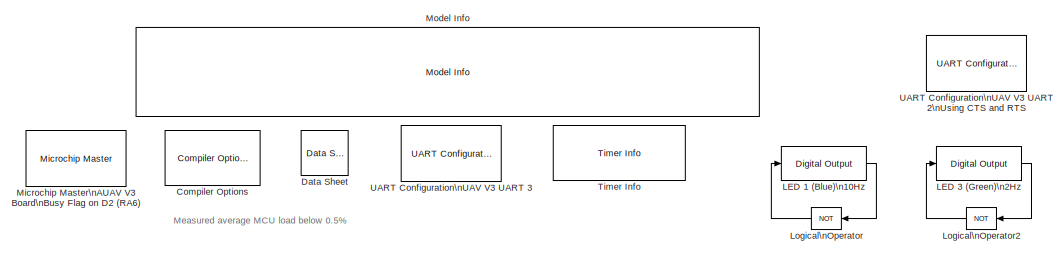
[diagram: root canvas - part 1/2, full width, top band]
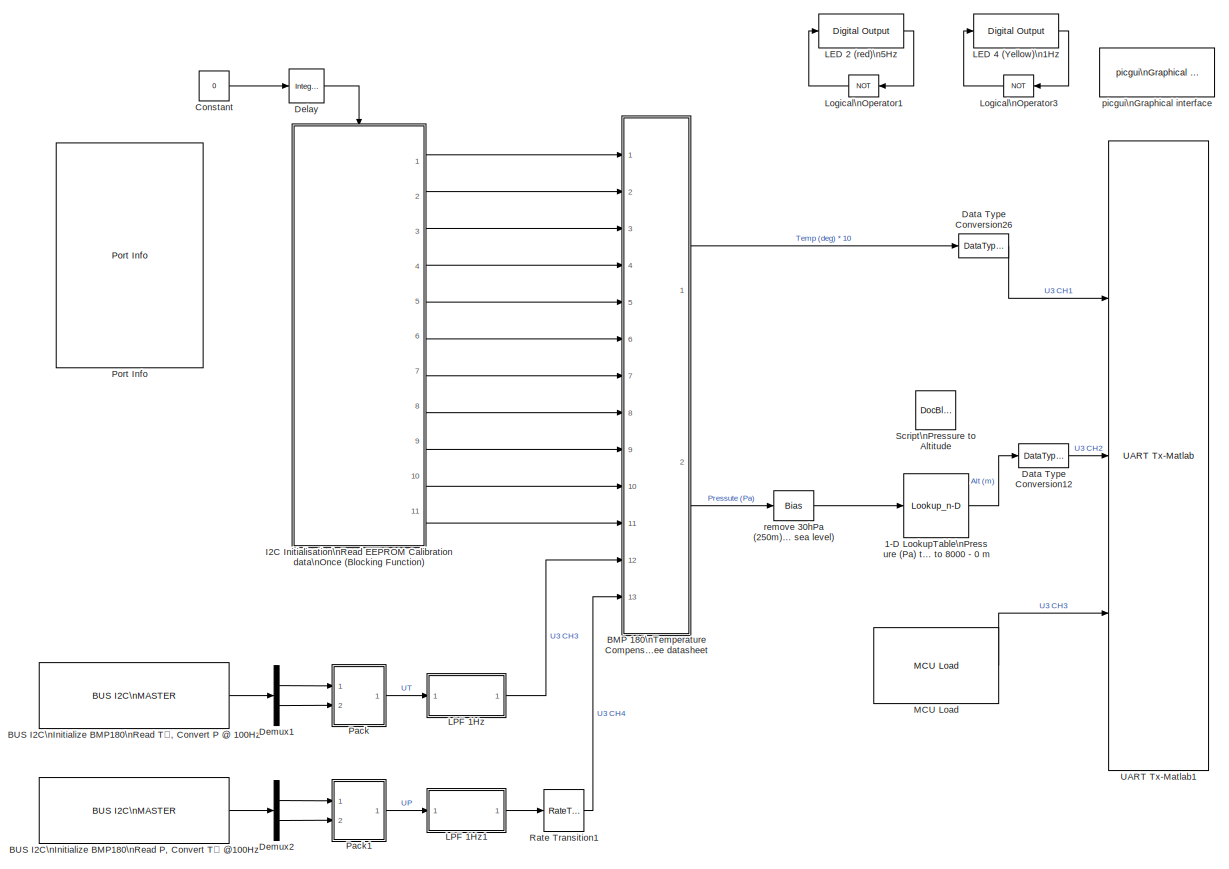
[diagram: root canvas - part 2/2, most of the canvas]
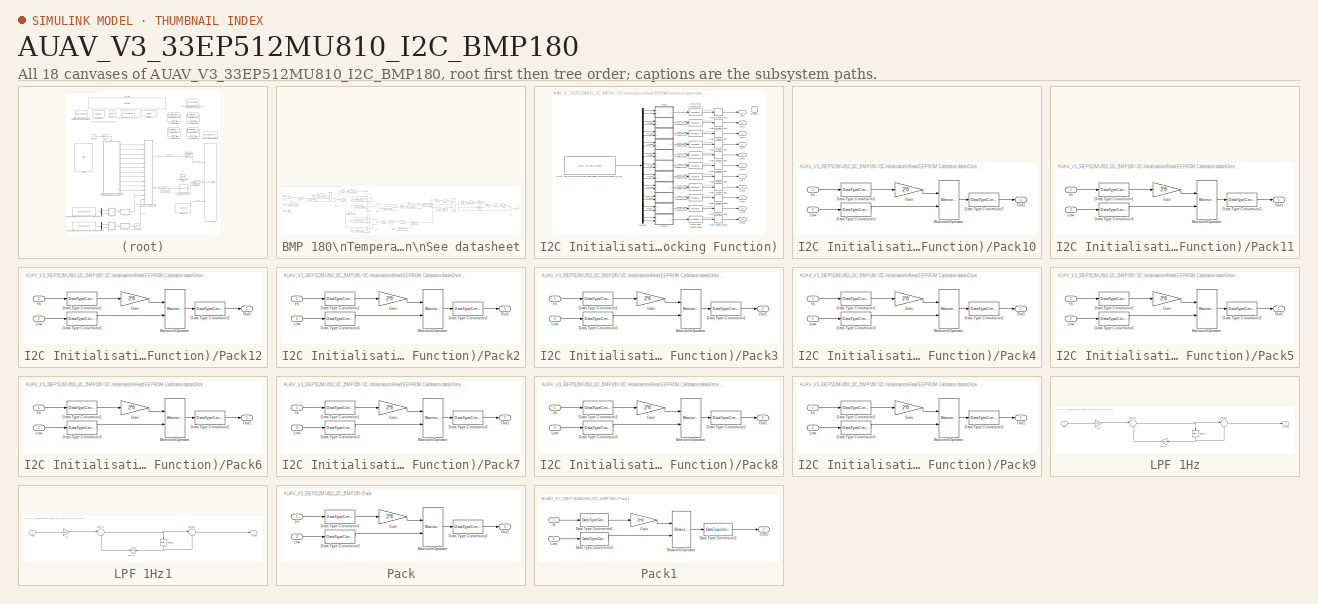
[diagram: thumbnail index - all 18 canvases of the model, root first then tree order]
MODEL AUAV_V3_33EP512MU810_I2C_BMP180
KIND model
BLOCK [Lookup_n-D] 1-D LookupTable\nPressure (Pa) to Altitude (m)\nValidate from 35000 to 101325 Pa \nequiv to 8000 - 0 m
  BeginIndexSearchUsingPreviousIndexResult = on
  BreakpointsForDimension1 = [  35000  35358  35799  36218  36647  37086  37463  37867  38284  38639  39007  39435  39920  40363  40841  41285  41707  42156  42664  43168  43649  44137  44662  45105  45550  46088  46633  47208  47742  48308  48833  49375  49917  50484  51077  51694  52269  52806  53380  53923  54482  55078  55692  56323  56892  57456  58035  58713  59333  59883  60532  61206  61808  62536  63274  63867  64453...<+297ch>
  BreakpointsForDimension1DataTypeStr = uint32
  ExtrapMethod = None - Clip
  FractionDataTypeStr = fixdt(1,32,18)
  IndexSearchMethod = Linear search
  IntermediateResultsDataTypeStr = fixdt(1,32,18)
  NumberOfTableDimensions = 1
  OutDataTypeStr = fixdt(0,16,3)
  Ports = [1, 1]
  RndMeth = Simplest
  SID = 952
  Table = floor(1e3*[  8.117494150205507  8.047307468888779  7.961635148104636  7.881024806288224  7.799269215467364  7.716406273634682  7.645877610153606  7.570932893861216  7.494252579165659  7.429504315425707  7.362891489741167  7.286054950638820  7.199797399557283  7.121747962190449  7.038306271811481  6.961505205390625  6.889127040412314  6.812766274429189  6.727161471881082  6.643042514664310  6.56350...<+1494ch>
  TableDataTypeStr = fixdt(0,16,3)
  UseLastTableValue = on
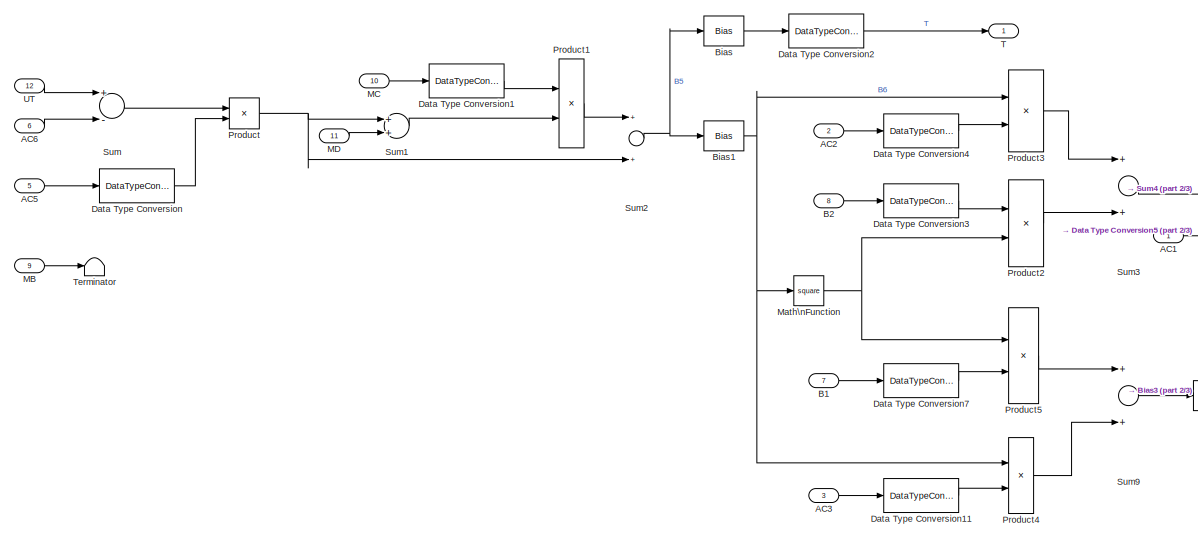
[diagram: BMP 180\nTemperature Compensation\nSee datasheet - part 1/3, left side, full height]
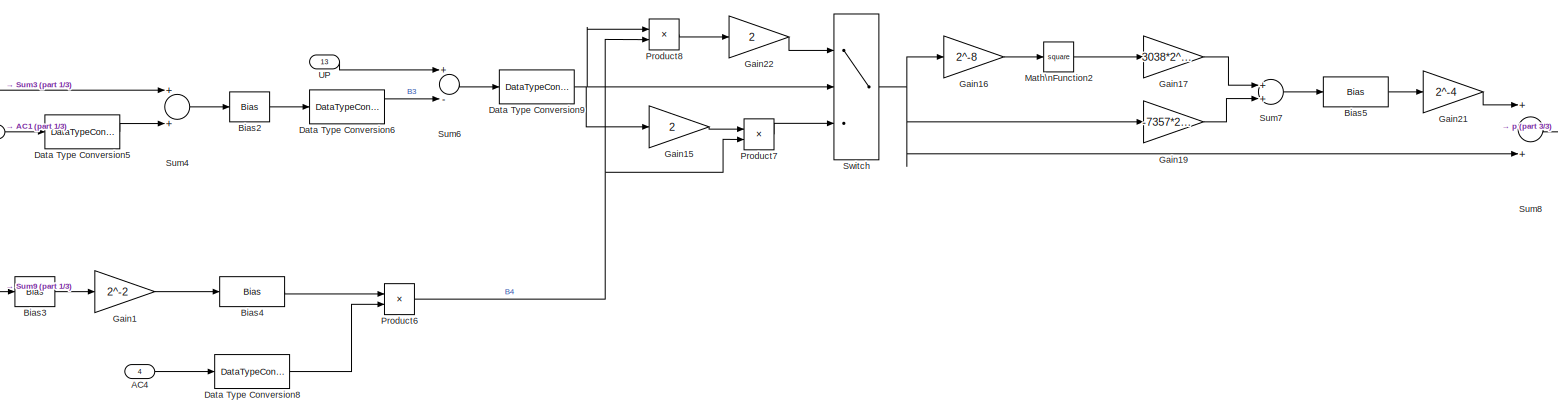
[diagram: BMP 180\nTemperature Compensation\nSee datasheet - part 2/3, middle right region]
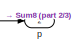
[diagram: BMP 180\nTemperature Compensation\nSee datasheet - part 3/3, middle right region]
BLOCK [SubSystem] BMP 180\nTemperature Compensation\nSee datasheet
  FunctionWithSeparateData = off
  MaskHideContents = off
  MinAlgLoopOccurrences = off
  Opaque = off
  Ports = [13, 2]
  PropExecContextOutsideSubsystem = off
  RTWSystemCode = Auto
  RequestExecContextInheritance = off
  SID = 886
BLOCK [Inport] BMP 180\nTemperature Compensation\nSee datasheet/AC1
  IconDisplay = Port number
  SID = 887
BLOCK [Inport] BMP 180\nTemperature Compensation\nSee datasheet/AC2
  IconDisplay = Port number
  Port = 2
  SID = 888
BLOCK [Inport] BMP 180\nTemperature Compensation\nSee datasheet/AC3
  IconDisplay = Port number
  Port = 3
  SID = 889
BLOCK [Inport] BMP 180\nTemperature Compensation\nSee datasheet/AC4
  IconDisplay = Port number
  Port = 4
  SID = 890
BLOCK [Inport] BMP 180\nTemperature Compensation\nSee datasheet/AC5
  IconDisplay = Port number
  Port = 5
  SID = 891
BLOCK [Inport] BMP 180\nTemperature Compensation\nSee datasheet/AC6
  IconDisplay = Port number
  Port = 6
  SID = 892
BLOCK [Inport] BMP 180\nTemperature Compensation\nSee datasheet/B1
  IconDisplay = Port number
  Port = 7
  SID = 893
BLOCK [Inport] BMP 180\nTemperature Compensation\nSee datasheet/B2
  IconDisplay = Port number
  Port = 8
  SID = 894
BLOCK [Bias] BMP 180\nTemperature Compensation\nSee datasheet/Bias
  Bias = 8
  SID = 900
  SaturateOnIntegerOverflow = off
BLOCK [Bias] BMP 180\nTemperature Compensation\nSee datasheet/Bias1
  Bias = -4000
  SID = 901
  SaturateOnIntegerOverflow = off
BLOCK [Bias] BMP 180\nTemperature Compensation\nSee datasheet/Bias2
  Bias = 2
  SID = 902
  SaturateOnIntegerOverflow = off
BLOCK [Bias] BMP 180\nTemperature Compensation\nSee datasheet/Bias3
  Bias = 2
  SID = 903
  SaturateOnIntegerOverflow = off
BLOCK [Bias] BMP 180\nTemperature Compensation\nSee datasheet/Bias4
  Bias = 32768
  SID = 904
  SaturateOnIntegerOverflow = off
BLOCK [Bias] BMP 180\nTemperature Compensation\nSee datasheet/Bias5
  Bias = 3791
  SID = 905
  SaturateOnIntegerOverflow = off
BLOCK [DataTypeConversion] BMP 180\nTemperature Compensation\nSee datasheet/Data Type Conversion
  ConvertRealWorld = Stored Integer (SI)
  OutDataType = fixdt(0,16,15)
  OutDataTypeMode = Specify via dialog
  OutDataTypeStr = fixdt(0,16,15)
  RndMeth = Floor
  SID = 906
  SaturateOnIntegerOverflow = off
BLOCK [DataTypeConversion] BMP 180\nTemperature Compensation\nSee datasheet/Data Type Conversion1
  ConvertRealWorld = Stored Integer (SI)
  OutDataType = fixdt(1,16,-11)
  OutDataTypeMode = Specify via dialog
  OutDataTypeStr = fixdt(1,16,-11)
  RndMeth = Floor
  SID = 907
  SaturateOnIntegerOverflow = off
BLOCK [DataTypeConversion] BMP 180\nTemperature Compensation\nSee datasheet/Data Type Conversion11
  ConvertRealWorld = Stored Integer (SI)
  OutDataType = fixdt(1,16,13)
  OutDataTypeMode = Specify via dialog
  OutDataTypeStr = fixdt(1,16,13)
  RndMeth = Floor
  SID = 908
  SaturateOnIntegerOverflow = off
BLOCK [DataTypeConversion] BMP 180\nTemperature Compensation\nSee datasheet/Data Type Conversion2
  ConvertRealWorld = Stored Integer (SI)
  OutDataType = fixdt(1,16,4)
  OutDataTypeMode = Specify via dialog
  OutDataTypeStr = fixdt(1,16,4)
  RndMeth = Floor
  SID = 909
  SaturateOnIntegerOverflow = off
BLOCK [DataTypeConversion] BMP 180\nTemperature Compensation\nSee datasheet/Data Type Conversion3
  ConvertRealWorld = Stored Integer (SI)
  OutDataType = fixdt(1,16,23)
  OutDataTypeMode = Specify via dialog
  OutDataTypeStr = fixdt(1,16,23)
  RndMeth = Floor
  SID = 910
  SaturateOnIntegerOverflow = off
BLOCK [DataTypeConversion] BMP 180\nTemperature Compensation\nSee datasheet/Data Type Conversion4
  ConvertRealWorld = Stored Integer (SI)
  OutDataType = fixdt(1,16,11)
  OutDataTypeMode = Specify via dialog
  OutDataTypeStr = fixdt(1,16,11)
  RndMeth = Floor
  SID = 911
  SaturateOnIntegerOverflow = off
BLOCK [DataTypeConversion] BMP 180\nTemperature Compensation\nSee datasheet/Data Type Conversion5
  ConvertRealWorld = Stored Integer (SI)
  OutDataType = fixdt(1,16,-2)
  OutDataTypeMode = Specify via dialog
  OutDataTypeStr = fixdt(1,16,-2)
  RndMeth = Floor
  SID = 912
  SaturateOnIntegerOverflow = off
BLOCK [DataTypeConversion] BMP 180\nTemperature Compensation\nSee datasheet/Data Type Conversion6
  ConvertRealWorld = Stored Integer (SI)
  OutDataType = fixdt(1,32,2)
  OutDataTypeMode = Specify via dialog
  OutDataTypeStr = fixdt(1,32,2)
  RndMeth = Floor
  SID = 913
  SaturateOnIntegerOverflow = off
BLOCK [DataTypeConversion] BMP 180\nTemperature Compensation\nSee datasheet/Data Type Conversion7
  ConvertRealWorld = Stored Integer (SI)
  OutDataType = fixdt(1,16,12+16)
  OutDataTypeMode = Specify via dialog
  OutDataTypeStr = fixdt(1,16,12+16)
  RndMeth = Floor
  SID = 914
  SaturateOnIntegerOverflow = off
BLOCK [DataTypeConversion] BMP 180\nTemperature Compensation\nSee datasheet/Data Type Conversion8
  ConvertRealWorld = Stored Integer (SI)
  OutDataType = fixdt(0,16,15)
  OutDataTypeMode = Specify via dialog
  OutDataTypeStr = fixdt(0,16,15)
  RndMeth = Floor
  SID = 915
  SaturateOnIntegerOverflow = off
BLOCK [DataTypeConversion] BMP 180\nTemperature Compensation\nSee datasheet/Data Type Conversion9
  ConvertRealWorld = Stored Integer (SI)
  OutDataType = fixdt(0,32,5e4,0)
  OutDataTypeMode = Specify via dialog
  OutDataTypeStr = fixdt(0,32,5e4,0)
  RndMeth = Floor
  SID = 916
  SaturateOnIntegerOverflow = off
BLOCK [Gain] BMP 180\nTemperature Compensation\nSee datasheet/Gain1
  Gain = 2^-2
  OutDataTypeMode = int32
  OutDataTypeStr = int32
  ParamDataTypeStr = Inherit: Inherit via internal rule
  ParameterDataTypeMode = Inherit via internal rule
  SID = 917
  SaturateOnIntegerOverflow = off
BLOCK [Gain] BMP 180\nTemperature Compensation\nSee datasheet/Gain15
  Gain = 2
  OutDataTypeMode = uint32
  OutDataTypeStr = uint32
  ParamDataTypeStr = Inherit: Inherit via internal rule
  ParameterDataTypeMode = Inherit via internal rule
  RndMeth = Round
  SID = 918
  SaturateOnIntegerOverflow = off
BLOCK [Gain] BMP 180\nTemperature Compensation\nSee datasheet/Gain16
  Gain = 2^-8
  OutDataTypeMode = int32
  OutDataTypeStr = int32
  ParamDataTypeStr = Inherit: Inherit via internal rule
  ParameterDataTypeMode = Inherit via internal rule
  RndMeth = Round
  SID = 919
  SaturateOnIntegerOverflow = off
BLOCK [Gain] BMP 180\nTemperature Compensation\nSee datasheet/Gain17
  Gain = 3038*2^-16
  OutDataTypeMode = uint32
  OutDataTypeStr = uint32
  ParamDataTypeStr = Inherit: Inherit via internal rule
  ParameterDataTypeMode = Inherit via internal rule
  SID = 920
  SaturateOnIntegerOverflow = off
BLOCK [Gain] BMP 180\nTemperature Compensation\nSee datasheet/Gain19
  Gain = -7357*2^-16
  OutDataTypeMode = int32
  OutDataTypeStr = int32
  ParamDataTypeStr = fixdt(1,16)
  ParameterDataType = fixdt(1,16)
  ParameterDataTypeMode = Specify via dialog
  ParameterScalingMode = Best Precision: Matrix-wise
  SID = 921
  SaturateOnIntegerOverflow = off
BLOCK [Gain] BMP 180\nTemperature Compensation\nSee datasheet/Gain21
  Gain = 2^-4
  ParamDataTypeStr = Inherit: Inherit via internal rule
  ParameterDataTypeMode = Inherit via internal rule
  SID = 922
  SaturateOnIntegerOverflow = off
BLOCK [Gain] BMP 180\nTemperature Compensation\nSee datasheet/Gain22
  Gain = 2
  ParamDataTypeStr = Inherit: Inherit via internal rule
  ParameterDataTypeMode = Inherit via internal rule
  SID = 923
  SaturateOnIntegerOverflow = off
BLOCK [Inport] BMP 180\nTemperature Compensation\nSee datasheet/MB
  IconDisplay = Port number
  Port = 9
  SID = 895
BLOCK [Inport] BMP 180\nTemperature Compensation\nSee datasheet/MC
  IconDisplay = Port number
  Port = 10
  SID = 896
BLOCK [Inport] BMP 180\nTemperature Compensation\nSee datasheet/MD
  IconDisplay = Port number
  Port = 11
  SID = 897
BLOCK [Math] BMP 180\nTemperature Compensation\nSee datasheet/Math\nFunction
  Operator = square
  OutDataTypeMode = Inherit via internal rule
  OutDataTypeStr = Inherit: Inherit via internal rule
  Ports = [1, 1]
  SID = 924
BLOCK [Math] BMP 180\nTemperature Compensation\nSee datasheet/Math\nFunction2
  Operator = square
  OutDataTypeMode = uint32
  OutDataTypeStr = uint32
  Ports = [1, 1]
  SID = 925
BLOCK [Product] BMP 180\nTemperature Compensation\nSee datasheet/Product
  InputSameDT = off
  Ports = [2, 1]
  RndMeth = Round
  SID = 926
  SaturateOnIntegerOverflow = off
BLOCK [Product] BMP 180\nTemperature Compensation\nSee datasheet/Product1
  InputSameDT = off
  Inputs = */
  OutDataTypeMode = int16
  OutDataTypeStr = int16
  Ports = [2, 1]
  RndMeth = Round
  SID = 927
  SaturateOnIntegerOverflow = off
BLOCK [Product] BMP 180\nTemperature Compensation\nSee datasheet/Product2
  InputSameDT = off
  OutDataTypeMode = int16
  OutDataTypeStr = int16
  Ports = [2, 1]
  RndMeth = Floor
  SID = 928
  SaturateOnIntegerOverflow = off
BLOCK [Product] BMP 180\nTemperature Compensation\nSee datasheet/Product3
  InputSameDT = off
  Ports = [2, 1]
  RndMeth = Floor
  SID = 929
  SaturateOnIntegerOverflow = off
BLOCK [Product] BMP 180\nTemperature Compensation\nSee datasheet/Product4
  InputSameDT = off
  OutDataTypeMode = int16
  OutDataTypeStr = int16
  Ports = [2, 1]
  RndMeth = Floor
  SID = 930
  SaturateOnIntegerOverflow = off
BLOCK [Product] BMP 180\nTemperature Compensation\nSee datasheet/Product5
  InputSameDT = off
  OutDataTypeMode = int16
  OutDataTypeStr = int16
  Ports = [2, 1]
  RndMeth = Floor
  SID = 931
  SaturateOnIntegerOverflow = off
BLOCK [Product] BMP 180\nTemperature Compensation\nSee datasheet/Product6
  InputSameDT = off
  OutDataTypeMode = uint32
  OutDataTypeStr = uint32
  Ports = [2, 1]
  RndMeth = Floor
  SID = 932
  SaturateOnIntegerOverflow = off
BLOCK [Product] BMP 180\nTemperature Compensation\nSee datasheet/Product7
  InputSameDT = off
  Inputs = */
  OutDataTypeMode = Inherit via internal rule
  OutDataTypeStr = Inherit: Inherit via internal rule
  Ports = [2, 1]
  RndMeth = Round
  SID = 933
  SaturateOnIntegerOverflow = off
BLOCK [Product] BMP 180\nTemperature Compensation\nSee datasheet/Product8
  InputSameDT = off
  Inputs = */
  OutDataTypeMode = uint32
  OutDataTypeStr = uint32
  Ports = [2, 1]
  RndMeth = Round
  SID = 934
  SaturateOnIntegerOverflow = off
BLOCK [Sum] BMP 180\nTemperature Compensation\nSee datasheet/Sum
  InputSameDT = off
  Inputs = +-
  OutDataTypeMode = Inherit via internal rule
  OutDataTypeStr = Inherit: Inherit via internal rule
  Ports = [2, 1]
  RndMeth = Round
  SID = 935
  SaturateOnIntegerOverflow = off
BLOCK [Sum] BMP 180\nTemperature Compensation\nSee datasheet/Sum1
  AccumDataTypeStr = Inherit: Same as first input
  InputSameDT = off
  Ports = [2, 1]
  RndMeth = Round
  SID = 936
  SaturateOnIntegerOverflow = off
BLOCK [Sum] BMP 180\nTemperature Compensation\nSee datasheet/Sum2
  AccumDataTypeStr = int16
  InputSameDT = off
  OutDataTypeMode = int16
  OutDataTypeStr = int16
  Ports = [2, 1]
  RndMeth = Round
  SID = 937
  SaturateOnIntegerOverflow = off
BLOCK [Sum] BMP 180\nTemperature Compensation\nSee datasheet/Sum3
  InputSameDT = off
  OutDataTypeMode = Inherit via internal rule
  OutDataTypeStr = Inherit: Inherit via internal rule
  Ports = [2, 1]
  SID = 938
  SaturateOnIntegerOverflow = off
BLOCK [Sum] BMP 180\nTemperature Compensation\nSee datasheet/Sum4
  InputSameDT = off
  OutDataTypeMode = int32
  OutDataTypeStr = int32
  Ports = [2, 1]
  SID = 939
  SaturateOnIntegerOverflow = off
BLOCK [Sum] BMP 180\nTemperature Compensation\nSee datasheet/Sum6
  AccumDataTypeStr = uint32
  InputSameDT = off
  Inputs = +-
  OutDataTypeMode = uint32
  OutDataTypeStr = uint32
  Ports = [2, 1]
  SID = 940
  SaturateOnIntegerOverflow = off
BLOCK [Sum] BMP 180\nTemperature Compensation\nSee datasheet/Sum7
  AccumDataTypeStr = int32
  InputSameDT = off
  OutDataTypeMode = int32
  OutDataTypeStr = int32
  Ports = [2, 1]
  SID = 941
  SaturateOnIntegerOverflow = off
BLOCK [Sum] BMP 180\nTemperature Compensation\nSee datasheet/Sum8
  AccumDataTypeStr = int32
  InputSameDT = off
  OutDataTypeMode = Same as accumulator
  OutDataTypeStr = Inherit: Same as accumulator
  Ports = [2, 1]
  RndMeth = Round
  SID = 942
  SaturateOnIntegerOverflow = off
BLOCK [Sum] BMP 180\nTemperature Compensation\nSee datasheet/Sum9
  InputSameDT = off
  OutDataTypeMode = Inherit via internal rule
  OutDataTypeStr = Inherit: Inherit via internal rule
  Ports = [2, 1]
  SID = 943
  SaturateOnIntegerOverflow = off
BLOCK [Switch] BMP 180\nTemperature Compensation\nSee datasheet/Switch
  Criteria = u2 > Threshold
  InputSameDT = off
  SID = 944
  SaturateOnIntegerOverflow = off
  Threshold = (2^31-1)*50000
BLOCK [Outport] BMP 180\nTemperature Compensation\nSee datasheet/T
  IconDisplay = Port number
  SID = 946
BLOCK [Terminator] BMP 180\nTemperature Compensation\nSee datasheet/Terminator
  SID = 945
BLOCK [Inport] BMP 180\nTemperature Compensation\nSee datasheet/UP
  IconDisplay = Port number
  Port = 13
  SID = 899
BLOCK [Inport] BMP 180\nTemperature Compensation\nSee datasheet/UT
  IconDisplay = Port number
  Port = 12
  SID = 898
BLOCK [Outport] BMP 180\nTemperature Compensation\nSee datasheet/p
  IconDisplay = Port number
  Port = 2
  SID = 947
BLOCK [Reference] BUS I2C\nInitialize BMP180\nRead P, Convert T° @100Hz  REF=MCHP_Blockset/BUS I2C/BUS I2C\nMASTER
  BlockingMode = off
  I2CRef = 2
  I2C_IntPriority = 5
  I2Csequence_num = [BFF0000000000000 40E0000000000000 412EEA3800000000 412EEA41343CC221]$[4070000000000000]$[3FF0000000000000 40E0200000000000 40F86A0000000000 40F866E066594CA2]$[4040000000000000 0000000000000000 0000000000000000 405DC00000000000]$[4050000000000000 3FF0000000000000 0000000000000000 406EC00000000000]$[4008000000000000 40E0000000000000 40F86A0000000000 410065D9C7810E65]$[4060000000000000 4000000000000...<+371ch>
  I2Csequence_txt = Initial-Configuration$     ---     $Start$Write Address:{[0x77]}    % BMP180 Address$Write Data (x1)  Write:{[0xF6]}  $Re-Start    % Re-Start when not followed with either Read or Write action rethrow Address$Read Data (x2)  Read:{adc out}    % Read converted value$Stop$Start$Write Address:{[0x77]}    % BMP180 Address$Write Data (x1)  Write:{[0xF4 0x2E]}      % Start T° Conversion$Stop
  InitialConfigurationNum = 0
  MCHP_MASTERLINK = AUAV_V3_33EP512MU810_I2C_BMP180/Microchip Master\nAUAV V3 Board\nBusy Flag on D2 (RA6)
  MCHP_PORT = {I2C 2 Clock}{SCL2}13:0:A2;{I2C 2 SDA}{SDA2}13:0:A3;
  ORDERING = 0
  PIN_SCL_TXT = A2 / Pin[58]
  PIN_SDA_TXT = A3 / Pin[59]
  Ports = [0, 1]
  SID = 435
  S_INPUT = [5  5]
  S_INPUT_Size = [2  2]
  S_OUTPUT = [5]
  S_OUTPUT_Size = [4]
  SampleTime = [.01 .005]
  SourceBlock = MCHP_Blockset/BUS I2C/BUS I2C\nMASTER
  SourceType = I2C Driver
BLOCK [Reference] BUS I2C\nInitialize BMP180\nRead T°, Convert P @ 100Hz  REF=MCHP_Blockset/BUS I2C/BUS I2C\nMASTER
  BlockingMode = off
  I2CRef = 2
  I2C_IntPriority = 5
  I2Csequence_num = [BFF0000000000000 40E0000000000000 412EEA3800000000 412EEA41343CC221]$[4070000000000000]$[3FF0000000000000 40E0200000000000 40F86A0000000000 40F866E066594CA2]$[4040000000000000 0000000000000000 0000000000000000 405DC00000000000]$[4050000000000000 3FF0000000000000 0000000000000000 406EC00000000000]$[4008000000000000 40E0000000000000 40F86A0000000000 410065D9C7810E65]$[4060000000000000 4000000000000...<+371ch>
  I2Csequence_txt = Initial-Configuration$     ---     $Start$Write Address:{[0x77]}    % BMP180 Address$Write Data (x1)  Write:{[0xF6]}  $Re-Start    % Re-Start when not followed with either Read or Write action rethrow Address$Read Data (x2)  Read:{adc out}    % Read converted value$Stop$Start$Write Address:{[0x77]}    % BMP180 Address$Write Data (x1)  Write:{[0xF4 0x34]}      % Start T° Conversion$Stop
  InitialConfigurationNum = 0
  MCHP_MASTERLINK = AUAV_V3_33EP512MU810_I2C_BMP180/Microchip Master\nAUAV V3 Board\nBusy Flag on D2 (RA6)
  MCHP_PORT = {I2C 2 Clock}{SCL2}13:0:A2;{I2C 2 SDA}{SDA2}13:0:A3;
  ORDERING = 0
  PIN_SCL_TXT = A2 / Pin[58]
  PIN_SDA_TXT = A3 / Pin[59]
  Ports = [0, 1]
  SID = 437
  S_INPUT = [5  5]
  S_INPUT_Size = [2  2]
  S_OUTPUT = [5]
  S_OUTPUT_Size = [4]
  SampleTime = [.01]
  SourceBlock = MCHP_Blockset/BUS I2C/BUS I2C\nMASTER
  SourceType = I2C Driver
BLOCK [Reference] Compiler Options  REF=MCHP_Blockset/System Configuration/Compiler Options
  AssemblyListing = off
  COMP_LIST = Dynamic Options
  COMP_LIST_TXT = xc16 - v1.26
  DEBUG_INFO = off
  HEAP_SIZE = 0
  LATEST_CMPLR = on
  MCHP_MASTERLINK = AUAV_V3_33EP512MU810_I2C_BMP180/Microchip Master\nAUAV V3 Board\nBusy Flag on D2 (RA6)
  MCHP_MULTITHREAD_COMPILATION = on
  MCODE = is less than 32768 (faster)
  MCONST = in code memory
  MDATA = Use only memory below address 8192 (faster)
  MPLAB_LINKLIB = fast floating-point math
  MPLAB_LINKLIB1 = default
  MSCALAR = Use only memory below address 8192 (faster)
  OMF = elf
  OMIT_FRAME_POINTER = off
  OPTIMIZATION_LEVEL = 3
  PROCEDURAL_ABSTRACTION = off
  Ports = []
  Priority = 1
  ProduceHexOutput = on
  SID = 7
  SourceBlock = MCHP_Blockset/System Configuration/Compiler Options
  UNROLL_LOOPS = on
  USE_64BIT_DOUBLE = on
BLOCK [Constant] Constant
  OutDataTypeMode = uint16
  OutDataTypeStr = uint16
  SID = 1044
  Value = 0
BLOCK [Reference] Data Sheet  REF=MCHP_Blockset/System Info/Data Sheet
  AttributesFormatString = %<cpy_MCHP_Id>
  DOC_FileLastCheckTime = [2014              6              5              2             11         43.632]
  DOC_FilePath = <userpath><path>
  DOC_MCHP_Id = 33EP512MU810
  DOC_Type = datasheet
  MCHP_MASTERLINK = AUAV_V3_33EP512MU810_I2C_BMP180/Microchip Master\nAUAV V3 Board\nBusy Flag on D2 (RA6)
  Ports = []
  SID = 28
  SourceBlock = MCHP_Blockset/System Info/Data Sheet
  cpy_MCHP_Id = 33EP512MU810
BLOCK [DataTypeConversion] Data Type Conversion12
  ConvertRealWorld = Stored Integer (SI)
  OutDataTypeMode = uint16
  OutDataTypeStr = uint16
  RndMeth = Floor
  SID = 953
  SaturateOnIntegerOverflow = off
BLOCK [DataTypeConversion] Data Type Conversion26
  OutDataTypeMode = int16
  OutDataTypeStr = int16
  RndMeth = Floor
  SID = 743
  SaturateOnIntegerOverflow = off
BLOCK [Reference] Delay  REF=simulink/Discrete/Integer Delay
  NumDelays = 1
  Ports = [1, 1]
  SID = 1074
  SourceBlock = simulink/Discrete/Integer Delay
  SourceType = Integer Delay
  samptime = .01
  vinit = 1
BLOCK [Demux] Demux1
  DisplayOption = bar
  Outputs = 2
  Ports = [1, 2]
  SID = 447
BLOCK [Demux] Demux2
  DisplayOption = bar
  Outputs = 2
  Ports = [1, 2]
  SID = 448
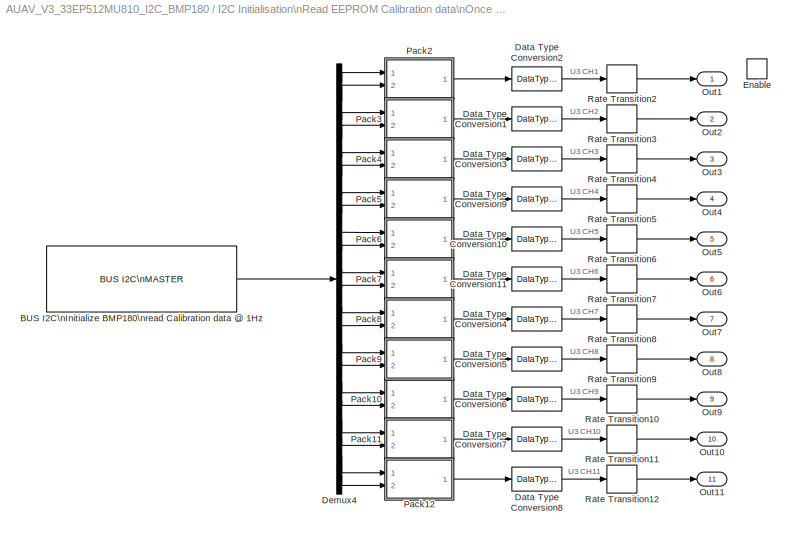
BLOCK [SubSystem] I2C Initialisation\nRead EEPROM Calibration data\nOnce (Blocking Function)
  FunctionWithSeparateData = off
  MaskHideContents = off
  MinAlgLoopOccurrences = off
  Opaque = off
  Ports = [0, 11, 1]
  PropExecContextOutsideSubsystem = off
  RTWSystemCode = Auto
  RequestExecContextInheritance = off
  SID = 1045
BLOCK [Reference] I2C Initialisation\nRead EEPROM Calibration data\nOnce (Blocking Function)/BUS I2C\nInitialize BMP180\nread Calibration data @ 1Hz  REF=MCHP_Blockset/BUS I2C/BUS I2C\nMASTER
  BlockingMode = on
  I2CRef = 2
  I2C_IntPriority = 5
  I2Csequence_num = [BFF0000000000000 40E0000000000000 412EEA3800000000 412EEA41343CC221]$[4070000000000000]$[3FF0000000000000 40E0200000000000 40F86A0000000000 40F866E066594CA2]$[4040000000000000 0000000000000000 0000000000000000 405DC00000000000]$[4050000000000000 3FF0000000000000 0000000000000000 4065400000000000]$[4008000000000000 40E0000000000000 40F86A0000000000 410065D9C7810E65]$[4060000000000000 4036000000000...<+74ch>
  I2Csequence_txt = Initial-Configuration$     ---     $Start$Write Address:{[0x77]}    % BMP180 Address$Write Data (x1)  Write:{[0xAA ]}  $Re-Start    % Re-Start when not followed with either Read or Write action rethrow Address$Read Data (x22)  Read:{Out 9}$Stop
  InitialConfigurationNum = 0
  MCHP_MASTERLINK = AUAV_V3_33EP512MU810_I2C_BMP180/Microchip Master\nAUAV V3 Board\nBusy Flag on D2 (RA6)
  MCHP_PORT = {I2C 2 Clock}{SCL2}13:0:A2;{I2C 2 SDA}{SDA2}13:0:A3;
  ORDERING = 0
  PIN_SCL_TXT = A2 / Pin[58]
  PIN_SDA_TXT = A3 / Pin[59]
  Ports = [0, 1]
  SID = 29
  S_INPUT = [5  5]
  S_INPUT_Size = [2  2]
  S_OUTPUT = [5]
  S_OUTPUT_Size = [4]
  SampleTime = .01
  SourceBlock = MCHP_Blockset/BUS I2C/BUS I2C\nMASTER
  SourceType = I2C Driver
BLOCK [DataTypeConversion] I2C Initialisation\nRead EEPROM Calibration data\nOnce (Blocking Function)/Data Type Conversion1
  ConvertRealWorld = Stored Integer (SI)
  OutDataTypeMode = int16
  OutDataTypeStr = int16
  RndMeth = Floor
  SID = 716
  SaturateOnIntegerOverflow = off
BLOCK [DataTypeConversion] I2C Initialisation\nRead EEPROM Calibration data\nOnce (Blocking Function)/Data Type Conversion10
  ConvertRealWorld = Stored Integer (SI)
  LockScale = on
  OutDataTypeMode = uint16
  OutDataTypeStr = uint16
  RndMeth = Floor
  SID = 724
  SaturateOnIntegerOverflow = off
BLOCK [DataTypeConversion] I2C Initialisation\nRead EEPROM Calibration data\nOnce (Blocking Function)/Data Type Conversion11
  ConvertRealWorld = Stored Integer (SI)
  LockScale = on
  OutDataTypeMode = uint16
  OutDataTypeStr = uint16
  RndMeth = Floor
  SID = 725
  SaturateOnIntegerOverflow = off
BLOCK [DataTypeConversion] I2C Initialisation\nRead EEPROM Calibration data\nOnce (Blocking Function)/Data Type Conversion2
  ConvertRealWorld = Stored Integer (SI)
  OutDataTypeMode = int16
  OutDataTypeStr = int16
  RndMeth = Floor
  SID = 715
  SaturateOnIntegerOverflow = off
BLOCK [DataTypeConversion] I2C Initialisation\nRead EEPROM Calibration data\nOnce (Blocking Function)/Data Type Conversion3
  ConvertRealWorld = Stored Integer (SI)
  OutDataTypeMode = int16
  OutDataTypeStr = int16
  RndMeth = Floor
  SID = 717
  SaturateOnIntegerOverflow = off
BLOCK [DataTypeConversion] I2C Initialisation\nRead EEPROM Calibration data\nOnce (Blocking Function)/Data Type Conversion4
  ConvertRealWorld = Stored Integer (SI)
  OutDataTypeMode = int16
  OutDataTypeStr = int16
  RndMeth = Floor
  SID = 718
  SaturateOnIntegerOverflow = off
BLOCK [DataTypeConversion] I2C Initialisation\nRead EEPROM Calibration data\nOnce (Blocking Function)/Data Type Conversion5
  ConvertRealWorld = Stored Integer (SI)
  OutDataTypeMode = int16
  OutDataTypeStr = int16
  RndMeth = Floor
  SID = 719
  SaturateOnIntegerOverflow = off
BLOCK [DataTypeConversion] I2C Initialisation\nRead EEPROM Calibration data\nOnce (Blocking Function)/Data Type Conversion6
  ConvertRealWorld = Stored Integer (SI)
  OutDataTypeMode = int16
  OutDataTypeStr = int16
  RndMeth = Floor
  SID = 720
  SaturateOnIntegerOverflow = off
BLOCK [DataTypeConversion] I2C Initialisation\nRead EEPROM Calibration data\nOnce (Blocking Function)/Data Type Conversion7
  ConvertRealWorld = Stored Integer (SI)
  OutDataTypeMode = int16
  OutDataTypeStr = int16
  RndMeth = Floor
  SID = 721
  SaturateOnIntegerOverflow = off
BLOCK [DataTypeConversion] I2C Initialisation\nRead EEPROM Calibration data\nOnce (Blocking Function)/Data Type Conversion8
  ConvertRealWorld = Stored Integer (SI)
  OutDataTypeMode = int16
  OutDataTypeStr = int16
  RndMeth = Floor
  SID = 722
  SaturateOnIntegerOverflow = off
BLOCK [DataTypeConversion] I2C Initialisation\nRead EEPROM Calibration data\nOnce (Blocking Function)/Data Type Conversion9
  ConvertRealWorld = Stored Integer (SI)
  LockScale = on
  OutDataTypeMode = uint16
  OutDataTypeStr = uint16
  RndMeth = Floor
  SID = 723
  SaturateOnIntegerOverflow = off
BLOCK [Demux] I2C Initialisation\nRead EEPROM Calibration data\nOnce (Blocking Function)/Demux4
  DisplayOption = bar
  Outputs = 22
  Ports = [1, 22]
  SID = 431
BLOCK [EnablePort] I2C Initialisation\nRead EEPROM Calibration data\nOnce (Blocking Function)/Enable
  Ports = []
  SID = 1057
BLOCK [Outport] I2C Initialisation\nRead EEPROM Calibration data\nOnce (Blocking Function)/Out1
  IconDisplay = Port number
  SID = 1046
BLOCK [Outport] I2C Initialisation\nRead EEPROM Calibration data\nOnce (Blocking Function)/Out10
  IconDisplay = Port number
  Port = 10
  SID = 1055
BLOCK [Outport] I2C Initialisation\nRead EEPROM Calibration data\nOnce (Blocking Function)/Out11
  IconDisplay = Port number
  Port = 11
  SID = 1056
BLOCK [Outport] I2C Initialisation\nRead EEPROM Calibration data\nOnce (Blocking Function)/Out2
  IconDisplay = Port number
  Port = 2
  SID = 1047
BLOCK [Outport] I2C Initialisation\nRead EEPROM Calibration data\nOnce (Blocking Function)/Out3
  IconDisplay = Port number
  Port = 3
  SID = 1048
BLOCK [Outport] I2C Initialisation\nRead EEPROM Calibration data\nOnce (Blocking Function)/Out4
  IconDisplay = Port number
  Port = 4
  SID = 1049
BLOCK [Outport] I2C Initialisation\nRead EEPROM Calibration data\nOnce (Blocking Function)/Out5
  IconDisplay = Port number
  Port = 5
  SID = 1050
BLOCK [Outport] I2C Initialisation\nRead EEPROM Calibration data\nOnce (Blocking Function)/Out6
  IconDisplay = Port number
  Port = 6
  SID = 1051
BLOCK [Outport] I2C Initialisation\nRead EEPROM Calibration data\nOnce (Blocking Function)/Out7
  IconDisplay = Port number
  Port = 7
  SID = 1052
BLOCK [Outport] I2C Initialisation\nRead EEPROM Calibration data\nOnce (Blocking Function)/Out8
  IconDisplay = Port number
  Port = 8
  SID = 1053
BLOCK [Outport] I2C Initialisation\nRead EEPROM Calibration data\nOnce (Blocking Function)/Out9
  IconDisplay = Port number
  Port = 9
  SID = 1054
BLOCK [SubSystem] I2C Initialisation\nRead EEPROM Calibration data\nOnce (Blocking Function)/Pack10
  FunctionWithSeparateData = off
  MaskHideContents = off
  MinAlgLoopOccurrences = off
  Opaque = off
  Ports = [2, 1]
  PropExecContextOutsideSubsystem = off
  RTWSystemCode = Auto
  RequestExecContextInheritance = off
  SID = 587
BLOCK [Reference] I2C Initialisation\nRead EEPROM Calibration data\nOnce (Blocking Function)/Pack10/Bitwise\nOperator  REF=simulink/Logic and Bit\nOperations/Bitwise\nOperator
  BitMask = bin2dec('11011001')
  BitMaskRealWorld = Stored Integer
  NumInputPorts = 2
  Ports = [2, 1]
  SID = 590
  SourceBlock = simulink/Logic and Bit\nOperations/Bitwise\nOperator
  SourceType = Bitwise Operator
  UseBitMask = off
  logicop = OR
BLOCK [DataTypeConversion] I2C Initialisation\nRead EEPROM Calibration data\nOnce (Blocking Function)/Pack10/Data Type Conversion1
  ConvertRealWorld = Stored Integer (SI)
  OutDataTypeMode = uint16
  OutDataTypeStr = uint16
  RndMeth = Floor
  SID = 591
  SaturateOnIntegerOverflow = off
BLOCK [DataTypeConversion] I2C Initialisation\nRead EEPROM Calibration data\nOnce (Blocking Function)/Pack10/Data Type Conversion2
  ConvertRealWorld = Stored Integer (SI)
  OutDataTypeMode = uint16
  OutDataTypeStr = uint16
  RndMeth = Floor
  SID = 592
  SaturateOnIntegerOverflow = off
BLOCK [DataTypeConversion] I2C Initialisation\nRead EEPROM Calibration data\nOnce (Blocking Function)/Pack10/Data Type Conversion3
  ConvertRealWorld = Stored Integer (SI)
  OutDataTypeMode = uint16
  OutDataTypeStr = uint16
  RndMeth = Floor
  SID = 593
  SaturateOnIntegerOverflow = off
BLOCK [Gain] I2C Initialisation\nRead EEPROM Calibration data\nOnce (Blocking Function)/Pack10/Gain
  Gain = 2^8
  ParamDataTypeStr = Inherit: Inherit via internal rule
  ParameterDataTypeMode = Inherit via internal rule
  SID = 594
  SaturateOnIntegerOverflow = off
BLOCK [Inport] I2C Initialisation\nRead EEPROM Calibration data\nOnce (Blocking Function)/Pack10/Hi
  IconDisplay = Port number
  SID = 588
BLOCK [Inport] I2C Initialisation\nRead EEPROM Calibration data\nOnce (Blocking Function)/Pack10/Low
  IconDisplay = Port number
  Port = 2
  SID = 589
BLOCK [Outport] I2C Initialisation\nRead EEPROM Calibration data\nOnce (Blocking Function)/Pack10/Out1
  IconDisplay = Port number
  SID = 595
BLOCK [SubSystem] I2C Initialisation\nRead EEPROM Calibration data\nOnce (Blocking Function)/Pack11
  FunctionWithSeparateData = off
  MaskHideContents = off
  MinAlgLoopOccurrences = off
  Opaque = off
  Ports = [2, 1]
  PropExecContextOutsideSubsystem = off
  RTWSystemCode = Auto
  RequestExecContextInheritance = off
  SID = 596
BLOCK [Reference] I2C Initialisation\nRead EEPROM Calibration data\nOnce (Blocking Function)/Pack11/Bitwise\nOperator  REF=simulink/Logic and Bit\nOperations/Bitwise\nOperator
  BitMask = bin2dec('11011001')
  BitMaskRealWorld = Stored Integer
  NumInputPorts = 2
  Ports = [2, 1]
  SID = 599
  SourceBlock = simulink/Logic and Bit\nOperations/Bitwise\nOperator
  SourceType = Bitwise Operator
  UseBitMask = off
  logicop = OR
BLOCK [DataTypeConversion] I2C Initialisation\nRead EEPROM Calibration data\nOnce (Blocking Function)/Pack11/Data Type Conversion1
  ConvertRealWorld = Stored Integer (SI)
  OutDataTypeMode = uint16
  OutDataTypeStr = uint16
  RndMeth = Floor
  SID = 600
  SaturateOnIntegerOverflow = off
BLOCK [DataTypeConversion] I2C Initialisation\nRead EEPROM Calibration data\nOnce (Blocking Function)/Pack11/Data Type Conversion2
  ConvertRealWorld = Stored Integer (SI)
  OutDataTypeMode = uint16
  OutDataTypeStr = uint16
  RndMeth = Floor
  SID = 601
  SaturateOnIntegerOverflow = off
BLOCK [DataTypeConversion] I2C Initialisation\nRead EEPROM Calibration data\nOnce (Blocking Function)/Pack11/Data Type Conversion3
  ConvertRealWorld = Stored Integer (SI)
  OutDataTypeMode = uint16
  OutDataTypeStr = uint16
  RndMeth = Floor
  SID = 602
  SaturateOnIntegerOverflow = off
BLOCK [Gain] I2C Initialisation\nRead EEPROM Calibration data\nOnce (Blocking Function)/Pack11/Gain
  Gain = 2^8
  ParamDataTypeStr = Inherit: Inherit via internal rule
  ParameterDataTypeMode = Inherit via internal rule
  SID = 603
  SaturateOnIntegerOverflow = off
BLOCK [Inport] I2C Initialisation\nRead EEPROM Calibration data\nOnce (Blocking Function)/Pack11/Hi
  IconDisplay = Port number
  SID = 597
BLOCK [Inport] I2C Initialisation\nRead EEPROM Calibration data\nOnce (Blocking Function)/Pack11/Low
  IconDisplay = Port number
  Port = 2
  SID = 598
BLOCK [Outport] I2C Initialisation\nRead EEPROM Calibration data\nOnce (Blocking Function)/Pack11/Out1
  IconDisplay = Port number
  SID = 604
BLOCK [SubSystem] I2C Initialisation\nRead EEPROM Calibration data\nOnce (Blocking Function)/Pack12
  FunctionWithSeparateData = off
  MaskHideContents = off
  MinAlgLoopOccurrences = off
  Opaque = off
  Ports = [2, 1]
  PropExecContextOutsideSubsystem = off
  RTWSystemCode = Auto
  RequestExecContextInheritance = off
  SID = 605
BLOCK [Reference] I2C Initialisation\nRead EEPROM Calibration data\nOnce (Blocking Function)/Pack12/Bitwise\nOperator  REF=simulink/Logic and Bit\nOperations/Bitwise\nOperator
  BitMask = bin2dec('11011001')
  BitMaskRealWorld = Stored Integer
  NumInputPorts = 2
  Ports = [2, 1]
  SID = 608
  SourceBlock = simulink/Logic and Bit\nOperations/Bitwise\nOperator
  SourceType = Bitwise Operator
  UseBitMask = off
  logicop = OR
BLOCK [DataTypeConversion] I2C Initialisation\nRead EEPROM Calibration data\nOnce (Blocking Function)/Pack12/Data Type Conversion1
  ConvertRealWorld = Stored Integer (SI)
  OutDataTypeMode = uint16
  OutDataTypeStr = uint16
  RndMeth = Floor
  SID = 609
  SaturateOnIntegerOverflow = off
BLOCK [DataTypeConversion] I2C Initialisation\nRead EEPROM Calibration data\nOnce (Blocking Function)/Pack12/Data Type Conversion2
  ConvertRealWorld = Stored Integer (SI)
  OutDataTypeMode = uint16
  OutDataTypeStr = uint16
  RndMeth = Floor
  SID = 610
  SaturateOnIntegerOverflow = off
BLOCK [DataTypeConversion] I2C Initialisation\nRead EEPROM Calibration data\nOnce (Blocking Function)/Pack12/Data Type Conversion3
  ConvertRealWorld = Stored Integer (SI)
  OutDataTypeMode = uint16
  OutDataTypeStr = uint16
  RndMeth = Floor
  SID = 611
  SaturateOnIntegerOverflow = off
BLOCK [Gain] I2C Initialisation\nRead EEPROM Calibration data\nOnce (Blocking Function)/Pack12/Gain
  Gain = 2^8
  ParamDataTypeStr = Inherit: Inherit via internal rule
  ParameterDataTypeMode = Inherit via internal rule
  SID = 612
  SaturateOnIntegerOverflow = off
BLOCK [Inport] I2C Initialisation\nRead EEPROM Calibration data\nOnce (Blocking Function)/Pack12/Hi
  IconDisplay = Port number
  SID = 606
BLOCK [Inport] I2C Initialisation\nRead EEPROM Calibration data\nOnce (Blocking Function)/Pack12/Low
  IconDisplay = Port number
  Port = 2
  SID = 607
BLOCK [Outport] I2C Initialisation\nRead EEPROM Calibration data\nOnce (Blocking Function)/Pack12/Out1
  IconDisplay = Port number
  SID = 613
BLOCK [SubSystem] I2C Initialisation\nRead EEPROM Calibration data\nOnce (Blocking Function)/Pack2
  FunctionWithSeparateData = off
  MaskHideContents = off
  MinAlgLoopOccurrences = off
  Opaque = off
  Ports = [2, 1]
  PropExecContextOutsideSubsystem = off
  RTWSystemCode = Auto
  RequestExecContextInheritance = off
  SID = 524
BLOCK [Reference] I2C Initialisation\nRead EEPROM Calibration data\nOnce (Blocking Function)/Pack2/Bitwise\nOperator  REF=simulink/Logic and Bit\nOperations/Bitwise\nOperator
  BitMask = bin2dec('11011001')
  BitMaskRealWorld = Stored Integer
  NumInputPorts = 2
  Ports = [2, 1]
  SID = 527
  SourceBlock = simulink/Logic and Bit\nOperations/Bitwise\nOperator
  SourceType = Bitwise Operator
  UseBitMask = off
  logicop = OR
BLOCK [DataTypeConversion] I2C Initialisation\nRead EEPROM Calibration data\nOnce (Blocking Function)/Pack2/Data Type Conversion1
  ConvertRealWorld = Stored Integer (SI)
  OutDataTypeMode = uint16
  OutDataTypeStr = uint16
  RndMeth = Floor
  SID = 528
  SaturateOnIntegerOverflow = off
BLOCK [DataTypeConversion] I2C Initialisation\nRead EEPROM Calibration data\nOnce (Blocking Function)/Pack2/Data Type Conversion2
  ConvertRealWorld = Stored Integer (SI)
  OutDataTypeMode = uint16
  OutDataTypeStr = uint16
  RndMeth = Floor
  SID = 529
  SaturateOnIntegerOverflow = off
BLOCK [DataTypeConversion] I2C Initialisation\nRead EEPROM Calibration data\nOnce (Blocking Function)/Pack2/Data Type Conversion3
  ConvertRealWorld = Stored Integer (SI)
  OutDataTypeMode = uint16
  OutDataTypeStr = uint16
  RndMeth = Floor
  SID = 530
  SaturateOnIntegerOverflow = off
BLOCK [Gain] I2C Initialisation\nRead EEPROM Calibration data\nOnce (Blocking Function)/Pack2/Gain
  Gain = 2^8
  ParamDataTypeStr = Inherit: Inherit via internal rule
  ParameterDataTypeMode = Inherit via internal rule
  SID = 531
  SaturateOnIntegerOverflow = off
BLOCK [Inport] I2C Initialisation\nRead EEPROM Calibration data\nOnce (Blocking Function)/Pack2/Hi
  IconDisplay = Port number
  SID = 525
BLOCK [Inport] I2C Initialisation\nRead EEPROM Calibration data\nOnce (Blocking Function)/Pack2/Low
  IconDisplay = Port number
  Port = 2
  SID = 526
BLOCK [Outport] I2C Initialisation\nRead EEPROM Calibration data\nOnce (Blocking Function)/Pack2/Out1
  IconDisplay = Port number
  SID = 532
BLOCK [SubSystem] I2C Initialisation\nRead EEPROM Calibration data\nOnce (Blocking Function)/Pack3
  FunctionWithSeparateData = off
  MaskHideContents = off
  MinAlgLoopOccurrences = off
  Opaque = off
  Ports = [2, 1]
  PropExecContextOutsideSubsystem = off
  RTWSystemCode = Auto
  RequestExecContextInheritance = off
  SID = 515
BLOCK [Reference] I2C Initialisation\nRead EEPROM Calibration data\nOnce (Blocking Function)/Pack3/Bitwise\nOperator  REF=simulink/Logic and Bit\nOperations/Bitwise\nOperator
  BitMask = bin2dec('11011001')
  BitMaskRealWorld = Stored Integer
  NumInputPorts = 2
  Ports = [2, 1]
  SID = 518
  SourceBlock = simulink/Logic and Bit\nOperations/Bitwise\nOperator
  SourceType = Bitwise Operator
  UseBitMask = off
  logicop = OR
BLOCK [DataTypeConversion] I2C Initialisation\nRead EEPROM Calibration data\nOnce (Blocking Function)/Pack3/Data Type Conversion1
  ConvertRealWorld = Stored Integer (SI)
  OutDataTypeMode = uint16
  OutDataTypeStr = uint16
  RndMeth = Floor
  SID = 519
  SaturateOnIntegerOverflow = off
BLOCK [DataTypeConversion] I2C Initialisation\nRead EEPROM Calibration data\nOnce (Blocking Function)/Pack3/Data Type Conversion2
  ConvertRealWorld = Stored Integer (SI)
  OutDataTypeMode = uint16
  OutDataTypeStr = uint16
  RndMeth = Floor
  SID = 520
  SaturateOnIntegerOverflow = off
BLOCK [DataTypeConversion] I2C Initialisation\nRead EEPROM Calibration data\nOnce (Blocking Function)/Pack3/Data Type Conversion3
  ConvertRealWorld = Stored Integer (SI)
  OutDataTypeMode = uint16
  OutDataTypeStr = uint16
  RndMeth = Floor
  SID = 521
  SaturateOnIntegerOverflow = off
BLOCK [Gain] I2C Initialisation\nRead EEPROM Calibration data\nOnce (Blocking Function)/Pack3/Gain
  Gain = 2^8
  ParamDataTypeStr = Inherit: Inherit via internal rule
  ParameterDataTypeMode = Inherit via internal rule
  SID = 522
  SaturateOnIntegerOverflow = off
BLOCK [Inport] I2C Initialisation\nRead EEPROM Calibration data\nOnce (Blocking Function)/Pack3/Hi
  IconDisplay = Port number
  SID = 516
BLOCK [Inport] I2C Initialisation\nRead EEPROM Calibration data\nOnce (Blocking Function)/Pack3/Low
  IconDisplay = Port number
  Port = 2
  SID = 517
BLOCK [Outport] I2C Initialisation\nRead EEPROM Calibration data\nOnce (Blocking Function)/Pack3/Out1
  IconDisplay = Port number
  SID = 523
BLOCK [SubSystem] I2C Initialisation\nRead EEPROM Calibration data\nOnce (Blocking Function)/Pack4
  FunctionWithSeparateData = off
  MaskHideContents = off
  MinAlgLoopOccurrences = off
  Opaque = off
  Ports = [2, 1]
  PropExecContextOutsideSubsystem = off
  RTWSystemCode = Auto
  RequestExecContextInheritance = off
  SID = 533
BLOCK [Reference] I2C Initialisation\nRead EEPROM Calibration data\nOnce (Blocking Function)/Pack4/Bitwise\nOperator  REF=simulink/Logic and Bit\nOperations/Bitwise\nOperator
  BitMask = bin2dec('11011001')
  BitMaskRealWorld = Stored Integer
  NumInputPorts = 2
  Ports = [2, 1]
  SID = 536
  SourceBlock = simulink/Logic and Bit\nOperations/Bitwise\nOperator
  SourceType = Bitwise Operator
  UseBitMask = off
  logicop = OR
BLOCK [DataTypeConversion] I2C Initialisation\nRead EEPROM Calibration data\nOnce (Blocking Function)/Pack4/Data Type Conversion1
  ConvertRealWorld = Stored Integer (SI)
  OutDataTypeMode = uint16
  OutDataTypeStr = uint16
  RndMeth = Floor
  SID = 537
  SaturateOnIntegerOverflow = off
BLOCK [DataTypeConversion] I2C Initialisation\nRead EEPROM Calibration data\nOnce (Blocking Function)/Pack4/Data Type Conversion2
  ConvertRealWorld = Stored Integer (SI)
  OutDataTypeMode = uint16
  OutDataTypeStr = uint16
  RndMeth = Floor
  SID = 538
  SaturateOnIntegerOverflow = off
BLOCK [DataTypeConversion] I2C Initialisation\nRead EEPROM Calibration data\nOnce (Blocking Function)/Pack4/Data Type Conversion3
  ConvertRealWorld = Stored Integer (SI)
  OutDataTypeMode = uint16
  OutDataTypeStr = uint16
  RndMeth = Floor
  SID = 539
  SaturateOnIntegerOverflow = off
BLOCK [Gain] I2C Initialisation\nRead EEPROM Calibration data\nOnce (Blocking Function)/Pack4/Gain
  Gain = 2^8
  ParamDataTypeStr = Inherit: Inherit via internal rule
  ParameterDataTypeMode = Inherit via internal rule
  SID = 540
  SaturateOnIntegerOverflow = off
BLOCK [Inport] I2C Initialisation\nRead EEPROM Calibration data\nOnce (Blocking Function)/Pack4/Hi
  IconDisplay = Port number
  SID = 534
BLOCK [Inport] I2C Initialisation\nRead EEPROM Calibration data\nOnce (Blocking Function)/Pack4/Low
  IconDisplay = Port number
  Port = 2
  SID = 535
BLOCK [Outport] I2C Initialisation\nRead EEPROM Calibration data\nOnce (Blocking Function)/Pack4/Out1
  IconDisplay = Port number
  SID = 541
BLOCK [SubSystem] I2C Initialisation\nRead EEPROM Calibration data\nOnce (Blocking Function)/Pack5
  FunctionWithSeparateData = off
  MaskHideContents = off
  MinAlgLoopOccurrences = off
  Opaque = off
  Ports = [2, 1]
  PropExecContextOutsideSubsystem = off
  RTWSystemCode = Auto
  RequestExecContextInheritance = off
  SID = 542
BLOCK [Reference] I2C Initialisation\nRead EEPROM Calibration data\nOnce (Blocking Function)/Pack5/Bitwise\nOperator  REF=simulink/Logic and Bit\nOperations/Bitwise\nOperator
  BitMask = bin2dec('11011001')
  BitMaskRealWorld = Stored Integer
  NumInputPorts = 2
  Ports = [2, 1]
  SID = 545
  SourceBlock = simulink/Logic and Bit\nOperations/Bitwise\nOperator
  SourceType = Bitwise Operator
  UseBitMask = off
  logicop = OR
BLOCK [DataTypeConversion] I2C Initialisation\nRead EEPROM Calibration data\nOnce (Blocking Function)/Pack5/Data Type Conversion1
  ConvertRealWorld = Stored Integer (SI)
  OutDataTypeMode = uint16
  OutDataTypeStr = uint16
  RndMeth = Floor
  SID = 546
  SaturateOnIntegerOverflow = off
BLOCK [DataTypeConversion] I2C Initialisation\nRead EEPROM Calibration data\nOnce (Blocking Function)/Pack5/Data Type Conversion2
  ConvertRealWorld = Stored Integer (SI)
  OutDataTypeMode = uint16
  OutDataTypeStr = uint16
  RndMeth = Floor
  SID = 547
  SaturateOnIntegerOverflow = off
BLOCK [DataTypeConversion] I2C Initialisation\nRead EEPROM Calibration data\nOnce (Blocking Function)/Pack5/Data Type Conversion3
  ConvertRealWorld = Stored Integer (SI)
  OutDataTypeMode = uint16
  OutDataTypeStr = uint16
  RndMeth = Floor
  SID = 548
  SaturateOnIntegerOverflow = off
BLOCK [Gain] I2C Initialisation\nRead EEPROM Calibration data\nOnce (Blocking Function)/Pack5/Gain
  Gain = 2^8
  ParamDataTypeStr = Inherit: Inherit via internal rule
  ParameterDataTypeMode = Inherit via internal rule
  SID = 549
  SaturateOnIntegerOverflow = off
BLOCK [Inport] I2C Initialisation\nRead EEPROM Calibration data\nOnce (Blocking Function)/Pack5/Hi
  IconDisplay = Port number
  SID = 543
BLOCK [Inport] I2C Initialisation\nRead EEPROM Calibration data\nOnce (Blocking Function)/Pack5/Low
  IconDisplay = Port number
  Port = 2
  SID = 544
BLOCK [Outport] I2C Initialisation\nRead EEPROM Calibration data\nOnce (Blocking Function)/Pack5/Out1
  IconDisplay = Port number
  SID = 550
BLOCK [SubSystem] I2C Initialisation\nRead EEPROM Calibration data\nOnce (Blocking Function)/Pack6
  FunctionWithSeparateData = off
  MaskHideContents = off
  MinAlgLoopOccurrences = off
  Opaque = off
  Ports = [2, 1]
  PropExecContextOutsideSubsystem = off
  RTWSystemCode = Auto
  RequestExecContextInheritance = off
  SID = 551
BLOCK [Reference] I2C Initialisation\nRead EEPROM Calibration data\nOnce (Blocking Function)/Pack6/Bitwise\nOperator  REF=simulink/Logic and Bit\nOperations/Bitwise\nOperator
  BitMask = bin2dec('11011001')
  BitMaskRealWorld = Stored Integer
  NumInputPorts = 2
  Ports = [2, 1]
  SID = 554
  SourceBlock = simulink/Logic and Bit\nOperations/Bitwise\nOperator
  SourceType = Bitwise Operator
  UseBitMask = off
  logicop = OR
BLOCK [DataTypeConversion] I2C Initialisation\nRead EEPROM Calibration data\nOnce (Blocking Function)/Pack6/Data Type Conversion1
  ConvertRealWorld = Stored Integer (SI)
  OutDataTypeMode = uint16
  OutDataTypeStr = uint16
  RndMeth = Floor
  SID = 555
  SaturateOnIntegerOverflow = off
BLOCK [DataTypeConversion] I2C Initialisation\nRead EEPROM Calibration data\nOnce (Blocking Function)/Pack6/Data Type Conversion2
  ConvertRealWorld = Stored Integer (SI)
  OutDataTypeMode = uint16
  OutDataTypeStr = uint16
  RndMeth = Floor
  SID = 556
  SaturateOnIntegerOverflow = off
BLOCK [DataTypeConversion] I2C Initialisation\nRead EEPROM Calibration data\nOnce (Blocking Function)/Pack6/Data Type Conversion3
  ConvertRealWorld = Stored Integer (SI)
  OutDataTypeMode = uint16
  OutDataTypeStr = uint16
  RndMeth = Floor
  SID = 557
  SaturateOnIntegerOverflow = off
BLOCK [Gain] I2C Initialisation\nRead EEPROM Calibration data\nOnce (Blocking Function)/Pack6/Gain
  Gain = 2^8
  ParamDataTypeStr = Inherit: Inherit via internal rule
  ParameterDataTypeMode = Inherit via internal rule
  SID = 558
  SaturateOnIntegerOverflow = off
BLOCK [Inport] I2C Initialisation\nRead EEPROM Calibration data\nOnce (Blocking Function)/Pack6/Hi
  IconDisplay = Port number
  SID = 552
BLOCK [Inport] I2C Initialisation\nRead EEPROM Calibration data\nOnce (Blocking Function)/Pack6/Low
  IconDisplay = Port number
  Port = 2
  SID = 553
BLOCK [Outport] I2C Initialisation\nRead EEPROM Calibration data\nOnce (Blocking Function)/Pack6/Out1
  IconDisplay = Port number
  SID = 559
BLOCK [SubSystem] I2C Initialisation\nRead EEPROM Calibration data\nOnce (Blocking Function)/Pack7
  FunctionWithSeparateData = off
  MaskHideContents = off
  MinAlgLoopOccurrences = off
  Opaque = off
  Ports = [2, 1]
  PropExecContextOutsideSubsystem = off
  RTWSystemCode = Auto
  RequestExecContextInheritance = off
  SID = 560
BLOCK [Reference] I2C Initialisation\nRead EEPROM Calibration data\nOnce (Blocking Function)/Pack7/Bitwise\nOperator  REF=simulink/Logic and Bit\nOperations/Bitwise\nOperator
  BitMask = bin2dec('11011001')
  BitMaskRealWorld = Stored Integer
  NumInputPorts = 2
  Ports = [2, 1]
  SID = 563
  SourceBlock = simulink/Logic and Bit\nOperations/Bitwise\nOperator
  SourceType = Bitwise Operator
  UseBitMask = off
  logicop = OR
BLOCK [DataTypeConversion] I2C Initialisation\nRead EEPROM Calibration data\nOnce (Blocking Function)/Pack7/Data Type Conversion1
  ConvertRealWorld = Stored Integer (SI)
  OutDataTypeMode = uint16
  OutDataTypeStr = uint16
  RndMeth = Floor
  SID = 564
  SaturateOnIntegerOverflow = off
BLOCK [DataTypeConversion] I2C Initialisation\nRead EEPROM Calibration data\nOnce (Blocking Function)/Pack7/Data Type Conversion2
  ConvertRealWorld = Stored Integer (SI)
  OutDataTypeMode = uint16
  OutDataTypeStr = uint16
  RndMeth = Floor
  SID = 565
  SaturateOnIntegerOverflow = off
BLOCK [DataTypeConversion] I2C Initialisation\nRead EEPROM Calibration data\nOnce (Blocking Function)/Pack7/Data Type Conversion3
  ConvertRealWorld = Stored Integer (SI)
  OutDataTypeMode = uint16
  OutDataTypeStr = uint16
  RndMeth = Floor
  SID = 566
  SaturateOnIntegerOverflow = off
BLOCK [Gain] I2C Initialisation\nRead EEPROM Calibration data\nOnce (Blocking Function)/Pack7/Gain
  Gain = 2^8
  ParamDataTypeStr = Inherit: Inherit via internal rule
  ParameterDataTypeMode = Inherit via internal rule
  SID = 567
  SaturateOnIntegerOverflow = off
BLOCK [Inport] I2C Initialisation\nRead EEPROM Calibration data\nOnce (Blocking Function)/Pack7/Hi
  IconDisplay = Port number
  SID = 561
BLOCK [Inport] I2C Initialisation\nRead EEPROM Calibration data\nOnce (Blocking Function)/Pack7/Low
  IconDisplay = Port number
  Port = 2
  SID = 562
BLOCK [Outport] I2C Initialisation\nRead EEPROM Calibration data\nOnce (Blocking Function)/Pack7/Out1
  IconDisplay = Port number
  SID = 568
BLOCK [SubSystem] I2C Initialisation\nRead EEPROM Calibration data\nOnce (Blocking Function)/Pack8
  FunctionWithSeparateData = off
  MaskHideContents = off
  MinAlgLoopOccurrences = off
  Opaque = off
  Ports = [2, 1]
  PropExecContextOutsideSubsystem = off
  RTWSystemCode = Auto
  RequestExecContextInheritance = off
  SID = 569
BLOCK [Reference] I2C Initialisation\nRead EEPROM Calibration data\nOnce (Blocking Function)/Pack8/Bitwise\nOperator  REF=simulink/Logic and Bit\nOperations/Bitwise\nOperator
  BitMask = bin2dec('11011001')
  BitMaskRealWorld = Stored Integer
  NumInputPorts = 2
  Ports = [2, 1]
  SID = 572
  SourceBlock = simulink/Logic and Bit\nOperations/Bitwise\nOperator
  SourceType = Bitwise Operator
  UseBitMask = off
  logicop = OR
BLOCK [DataTypeConversion] I2C Initialisation\nRead EEPROM Calibration data\nOnce (Blocking Function)/Pack8/Data Type Conversion1
  ConvertRealWorld = Stored Integer (SI)
  OutDataTypeMode = uint16
  OutDataTypeStr = uint16
  RndMeth = Floor
  SID = 573
  SaturateOnIntegerOverflow = off
BLOCK [DataTypeConversion] I2C Initialisation\nRead EEPROM Calibration data\nOnce (Blocking Function)/Pack8/Data Type Conversion2
  ConvertRealWorld = Stored Integer (SI)
  OutDataTypeMode = uint16
  OutDataTypeStr = uint16
  RndMeth = Floor
  SID = 574
  SaturateOnIntegerOverflow = off
BLOCK [DataTypeConversion] I2C Initialisation\nRead EEPROM Calibration data\nOnce (Blocking Function)/Pack8/Data Type Conversion3
  ConvertRealWorld = Stored Integer (SI)
  OutDataTypeMode = uint16
  OutDataTypeStr = uint16
  RndMeth = Floor
  SID = 575
  SaturateOnIntegerOverflow = off
BLOCK [Gain] I2C Initialisation\nRead EEPROM Calibration data\nOnce (Blocking Function)/Pack8/Gain
  Gain = 2^8
  ParamDataTypeStr = Inherit: Inherit via internal rule
  ParameterDataTypeMode = Inherit via internal rule
  SID = 576
  SaturateOnIntegerOverflow = off
BLOCK [Inport] I2C Initialisation\nRead EEPROM Calibration data\nOnce (Blocking Function)/Pack8/Hi
  IconDisplay = Port number
  SID = 570
BLOCK [Inport] I2C Initialisation\nRead EEPROM Calibration data\nOnce (Blocking Function)/Pack8/Low
  IconDisplay = Port number
  Port = 2
  SID = 571
BLOCK [Outport] I2C Initialisation\nRead EEPROM Calibration data\nOnce (Blocking Function)/Pack8/Out1
  IconDisplay = Port number
  SID = 577
BLOCK [SubSystem] I2C Initialisation\nRead EEPROM Calibration data\nOnce (Blocking Function)/Pack9
  FunctionWithSeparateData = off
  MaskHideContents = off
  MinAlgLoopOccurrences = off
  Opaque = off
  Ports = [2, 1]
  PropExecContextOutsideSubsystem = off
  RTWSystemCode = Auto
  RequestExecContextInheritance = off
  SID = 578
BLOCK [Reference] I2C Initialisation\nRead EEPROM Calibration data\nOnce (Blocking Function)/Pack9/Bitwise\nOperator  REF=simulink/Logic and Bit\nOperations/Bitwise\nOperator
  BitMask = bin2dec('11011001')
  BitMaskRealWorld = Stored Integer
  NumInputPorts = 2
  Ports = [2, 1]
  SID = 581
  SourceBlock = simulink/Logic and Bit\nOperations/Bitwise\nOperator
  SourceType = Bitwise Operator
  UseBitMask = off
  logicop = OR
BLOCK [DataTypeConversion] I2C Initialisation\nRead EEPROM Calibration data\nOnce (Blocking Function)/Pack9/Data Type Conversion1
  ConvertRealWorld = Stored Integer (SI)
  OutDataTypeMode = uint16
  OutDataTypeStr = uint16
  RndMeth = Floor
  SID = 582
  SaturateOnIntegerOverflow = off
BLOCK [DataTypeConversion] I2C Initialisation\nRead EEPROM Calibration data\nOnce (Blocking Function)/Pack9/Data Type Conversion2
  ConvertRealWorld = Stored Integer (SI)
  OutDataTypeMode = uint16
  OutDataTypeStr = uint16
  RndMeth = Floor
  SID = 583
  SaturateOnIntegerOverflow = off
BLOCK [DataTypeConversion] I2C Initialisation\nRead EEPROM Calibration data\nOnce (Blocking Function)/Pack9/Data Type Conversion3
  ConvertRealWorld = Stored Integer (SI)
  OutDataTypeMode = uint16
  OutDataTypeStr = uint16
  RndMeth = Floor
  SID = 584
  SaturateOnIntegerOverflow = off
BLOCK [Gain] I2C Initialisation\nRead EEPROM Calibration data\nOnce (Blocking Function)/Pack9/Gain
  Gain = 2^8
  ParamDataTypeStr = Inherit: Inherit via internal rule
  ParameterDataTypeMode = Inherit via internal rule
  SID = 585
  SaturateOnIntegerOverflow = off
BLOCK [Inport] I2C Initialisation\nRead EEPROM Calibration data\nOnce (Blocking Function)/Pack9/Hi
  IconDisplay = Port number
  SID = 579
BLOCK [Inport] I2C Initialisation\nRead EEPROM Calibration data\nOnce (Blocking Function)/Pack9/Low
  IconDisplay = Port number
  Port = 2
  SID = 580
BLOCK [Outport] I2C Initialisation\nRead EEPROM Calibration data\nOnce (Blocking Function)/Pack9/Out1
  IconDisplay = Port number
  SID = 586
BLOCK [RateTransition] I2C Initialisation\nRead EEPROM Calibration data\nOnce (Blocking Function)/Rate Transition10
  Deterministic = off
  SID = 1032
BLOCK [RateTransition] I2C Initialisation\nRead EEPROM Calibration data\nOnce (Blocking Function)/Rate Transition11
  Deterministic = off
  SID = 1033
BLOCK [RateTransition] I2C Initialisation\nRead EEPROM Calibration data\nOnce (Blocking Function)/Rate Transition12
  Deterministic = off
  SID = 1034
BLOCK [RateTransition] I2C Initialisation\nRead EEPROM Calibration data\nOnce (Blocking Function)/Rate Transition2
  Deterministic = off
  SID = 1005
BLOCK [RateTransition] I2C Initialisation\nRead EEPROM Calibration data\nOnce (Blocking Function)/Rate Transition3
  Deterministic = off
  SID = 1025
BLOCK [RateTransition] I2C Initialisation\nRead EEPROM Calibration data\nOnce (Blocking Function)/Rate Transition4
  Deterministic = off
  SID = 1026
BLOCK [RateTransition] I2C Initialisation\nRead EEPROM Calibration data\nOnce (Blocking Function)/Rate Transition5
  Deterministic = off
  SID = 1027
BLOCK [RateTransition] I2C Initialisation\nRead EEPROM Calibration data\nOnce (Blocking Function)/Rate Transition6
  Deterministic = off
  SID = 1028
BLOCK [RateTransition] I2C Initialisation\nRead EEPROM Calibration data\nOnce (Blocking Function)/Rate Transition7
  Deterministic = off
  SID = 1029
BLOCK [RateTransition] I2C Initialisation\nRead EEPROM Calibration data\nOnce (Blocking Function)/Rate Transition8
  Deterministic = off
  SID = 1030
BLOCK [RateTransition] I2C Initialisation\nRead EEPROM Calibration data\nOnce (Blocking Function)/Rate Transition9
  Deterministic = off
  SID = 1031
BLOCK [Reference] LED 1 (Blue)\n10Hz  REF=MCHP_Blockset/Digital IO/Digital Output
  FunctionWithSeparateData = off
  MCHP_MASTERLINK = AUAV_V3_33EP512MU810_I2C_BMP180/Microchip Master\nAUAV V3 Board\nBusy Flag on D2 (RA6)
  ORDERING = None
  PACK = off
  PIN = 2
  PORT = Dynamic Options
  PORT_TXT = B   [ 0 : 15 ]
  Ports = [1, 1]
  READPREVIOUS = on
  RTWMemSecDataConstants = Inherit from model
  RTWMemSecDataInternal = Inherit from model
  RTWMemSecDataParameters = Inherit from model
  RTWMemSecFuncExecute = Inherit from model
  RTWMemSecFuncInitTerm = Inherit from model
  SID = 2
  SIMULTANEOUS = off
  SampleTime = .05
  ShowPortLabels = FromPortIcon
  SourceBlock = MCHP_Blockset/Digital IO/Digital Output
  SystemSampleTime = -1
BLOCK [Reference] LED 2 (red)\n5Hz  REF=MCHP_Blockset/Digital IO/Digital Output
  FunctionWithSeparateData = off
  MCHP_MASTERLINK = AUAV_V3_33EP512MU810_I2C_BMP180/Microchip Master\nAUAV V3 Board\nBusy Flag on D2 (RA6)
  ORDERING = None
  PACK = off
  PIN = 3
  PORT = Dynamic Options
  PORT_TXT = B   [ 0 : 15 ]
  Ports = [1, 1]
  READPREVIOUS = on
  RTWMemSecDataConstants = Inherit from model
  RTWMemSecDataInternal = Inherit from model
  RTWMemSecDataParameters = Inherit from model
  RTWMemSecFuncExecute = Inherit from model
  RTWMemSecFuncInitTerm = Inherit from model
  SID = 8
  SIMULTANEOUS = off
  SampleTime = .1
  ShowPortLabels = FromPortIcon
  SourceBlock = MCHP_Blockset/Digital IO/Digital Output
  SystemSampleTime = -1
BLOCK [Reference] LED 3 (Green)\n2Hz  REF=MCHP_Blockset/Digital IO/Digital Output
  FunctionWithSeparateData = off
  MCHP_MASTERLINK = AUAV_V3_33EP512MU810_I2C_BMP180/Microchip Master\nAUAV V3 Board\nBusy Flag on D2 (RA6)
  ORDERING = None
  PACK = off
  PIN = 4
  PORT = Dynamic Options
  PORT_TXT = B   [ 0 : 15 ]
  Ports = [1, 1]
  READPREVIOUS = on
  RTWMemSecDataConstants = Inherit from model
  RTWMemSecDataInternal = Inherit from model
  RTWMemSecDataParameters = Inherit from model
  RTWMemSecFuncExecute = Inherit from model
  RTWMemSecFuncInitTerm = Inherit from model
  SID = 10
  SIMULTANEOUS = off
  SampleTime = .25
  ShowPortLabels = FromPortIcon
  SourceBlock = MCHP_Blockset/Digital IO/Digital Output
  SystemSampleTime = -1
BLOCK [Reference] LED 4 (Yellow)\n1Hz  REF=MCHP_Blockset/Digital IO/Digital Output
  FunctionWithSeparateData = off
  MCHP_MASTERLINK = AUAV_V3_33EP512MU810_I2C_BMP180/Microchip Master\nAUAV V3 Board\nBusy Flag on D2 (RA6)
  ORDERING = None
  PACK = off
  PIN = 5
  PORT = Dynamic Options
  PORT_TXT = B   [ 0 : 15 ]
  Ports = [1, 1]
  READPREVIOUS = on
  RTWMemSecDataConstants = Inherit from model
  RTWMemSecDataInternal = Inherit from model
  RTWMemSecDataParameters = Inherit from model
  RTWMemSecFuncExecute = Inherit from model
  RTWMemSecFuncInitTerm = Inherit from model
  SID = 12
  SIMULTANEOUS = off
  SampleTime = 0.5
  ShowPortLabels = FromPortIcon
  SourceBlock = MCHP_Blockset/Digital IO/Digital Output
  SystemSampleTime = -1
BLOCK [SubSystem] LPF 1Hz
  ErrorFcn = dspFilterRealizedInBasicElemsAlgLoopErrFcnCallback
  FunctionWithSeparateData = off
  MaskHideContents = off
  MinAlgLoopOccurrences = off
  Opaque = off
  Ports = [1, 1]
  PropExecContextOutsideSubsystem = off
  RTWSystemCode = Auto
  RequestExecContextInheritance = off
  SID = 961
  Tag = FilterWizardSubSystem
  UserData = DataTag0
  UserDataPersistent = on
BLOCK [Reference] LPF 1Hz/Delay11  REF=simulink/Discrete/Integer Delay
  NumDelays = 1
  Ports = [1, 1]
  SID = 1075
  SourceBlock = simulink/Discrete/Integer Delay
  SourceType = Integer Delay
  samptime = -1
  vinit = 0
BLOCK [Inport] LPF 1Hz/Input
  IconDisplay = Port number
  SID = 962
BLOCK [Outport] LPF 1Hz/Output
  IconDisplay = Port number
  SID = 967
BLOCK [Sum] LPF 1Hz/SumA21
  AccumDataTypeStr = fixdt(0,32,15)
  IconShape = round
  InputSameDT = off
  Inputs = |++
  OutDataTypeMode = Same as accumulator
  OutDataTypeStr = Inherit: Same as accumulator
  Ports = [2, 1]
  SID = 964
BLOCK [Sum] LPF 1Hz/SumB21
  AccumDataTypeStr = fixdt(0,32,16)
  IconShape = round
  InputSameDT = off
  Inputs = |++
  OutDataTypeMode = uint16
  OutDataTypeStr = uint16
  Ports = [2, 1]
  SID = 966
BLOCK [Gain] LPF 1Hz/a(2)(1)
  Gain = 0.9390625058174924
  OutDataType = fixdt(0,32,15)
  OutDataTypeMode = Specify via dialog
  OutDataTypeStr = fixdt(0,32,15)
  ParamDataTypeStr = fixdt(0,16,16)
  ParameterDataType = fixdt(0,16,16)
  ParameterDataTypeMode = Specify via dialog
  ParameterScalingMode = Best Precision: Matrix-wise
  SID = 968
BLOCK [Gain] LPF 1Hz/s(1)
  Gain = 0.030468747091253828
  OutDataType = fixdt(0,32,16)
  OutDataTypeMode = Specify via dialog
  OutDataTypeStr = fixdt(0,32,16)
  ParamDataTypeStr = fixdt(0,16,20)
  ParameterDataType = fixdt(0,16,20)
  ParameterDataTypeMode = Specify via dialog
  ParameterScalingMode = Best Precision: Matrix-wise
  SID = 963
BLOCK [SubSystem] LPF 1Hz1
  ErrorFcn = dspFilterRealizedInBasicElemsAlgLoopErrFcnCallback
  FunctionWithSeparateData = off
  MaskHideContents = off
  MinAlgLoopOccurrences = off
  Opaque = off
  Ports = [1, 1]
  PropExecContextOutsideSubsystem = off
  RTWSystemCode = Auto
  RequestExecContextInheritance = off
  SID = 994
  Tag = FilterWizardSubSystem
  UserData = DataTag1
  UserDataPersistent = on
BLOCK [Reference] LPF 1Hz1/Delay11  REF=simulink/Discrete/Integer Delay
  NumDelays = 1
  Ports = [1, 1]
  SID = 1076
  SourceBlock = simulink/Discrete/Integer Delay
  SourceType = Integer Delay
  samptime = -1
  vinit = 0
BLOCK [Inport] LPF 1Hz1/Input
  IconDisplay = Port number
  SID = 995
BLOCK [Outport] LPF 1Hz1/Output
  IconDisplay = Port number
  SID = 1001
BLOCK [Sum] LPF 1Hz1/SumA21
  AccumDataTypeStr = fixdt(0,32,15)
  IconShape = round
  InputSameDT = off
  Inputs = |++
  OutDataTypeMode = Same as accumulator
  OutDataTypeStr = Inherit: Same as accumulator
  Ports = [2, 1]
  SID = 997
BLOCK [Sum] LPF 1Hz1/SumB21
  AccumDataTypeStr = fixdt(0,32,16)
  IconShape = round
  InputSameDT = off
  Inputs = |++
  OutDataTypeMode = uint16
  OutDataTypeStr = uint16
  Ports = [2, 1]
  SID = 998
BLOCK [Gain] LPF 1Hz1/a(2)(1)
  Gain = 0.9390625058174924
  OutDataType = fixdt(0,32,15)
  OutDataTypeMode = Specify via dialog
  OutDataTypeStr = fixdt(0,32,15)
  ParamDataTypeStr = fixdt(0,16,16)
  ParameterDataType = fixdt(0,16,16)
  ParameterDataTypeMode = Specify via dialog
  ParameterScalingMode = Best Precision: Matrix-wise
  SID = 999
BLOCK [Gain] LPF 1Hz1/s(1)
  Gain = 0.030468747091253828
  OutDataType = fixdt(0,32,16)
  OutDataTypeMode = Specify via dialog
  OutDataTypeStr = fixdt(0,32,16)
  ParamDataTypeStr = fixdt(0,16,20)
  ParameterDataType = fixdt(0,16,20)
  ParameterDataTypeMode = Specify via dialog
  ParameterScalingMode = Best Precision: Matrix-wise
  SID = 1000
BLOCK [Logic] Logical\nOperator
  AllPortsSameDT = off
  Operator = NOT
  OutDataTypeMode = boolean
  OutDataTypeStr = boolean
  Ports = [1, 1]
  SID = 6
BLOCK [Logic] Logical\nOperator1
  AllPortsSameDT = off
  Operator = NOT
  OutDataTypeMode = boolean
  OutDataTypeStr = boolean
  Ports = [1, 1]
  SID = 9
BLOCK [Logic] Logical\nOperator2
  AllPortsSameDT = off
  Operator = NOT
  OutDataTypeMode = boolean
  OutDataTypeStr = boolean
  Ports = [1, 1]
  SID = 11
BLOCK [Logic] Logical\nOperator3
  AllPortsSameDT = off
  Operator = NOT
  OutDataTypeMode = boolean
  OutDataTypeStr = boolean
  Ports = [1, 1]
  SID = 13
BLOCK [Reference] MCU Load  REF=MCHP_Blockset/Profiling/MCU Load
  Info = Timer 2:  Resol: 914.2857143(ns)  -  Max: 59.9186(ms)
  MCHP_COMPILED_INFO = CompiledSampleTime= [0.01   0 ];CompiledInportDataTypes=[ ];CompiledInportDataWidth=[];
  MCHP_MASTERLINK = AUAV_V3_33EP512MU810_I2C_BMP180/Microchip Master\nAUAV V3 Board\nBusy Flag on D2 (RA6)
  MCHP_TIMER_REQUEST = {MCU_Load}{MCU_Load}21:5:0:0:[]:4194304;
  MCHP_TIMER_RESULT = [2 65535 ]
  MCULoadMeasure = on
  MCULoadPin = Dynamic Options
  MCULoadPin_TXT = None
  Ports = [0, 1]
  SID = 990
  SampleTime = .01
  SourceBlock = MCHP_Blockset/Profiling/MCU Load
  SourceType = MCU Load (Profile execution time)
  TIMER_Resolution = Dynamic Options
  TIMER_Resolution_TXT = Resol: 0.9143(us)  -  Max: 59.9(ms)
BLOCK [Reference] Microchip Master\nAUAV V3 Board\nBusy Flag on D2 (RA6)  REF=MCHP_Blockset/System Configuration/Microchip Master
  ACTIV_PLL = on
  ACTIV_PLL_spd = on
  AIVTDIS = Disable Alternate Vector Table
  ALTADREF = AVREF+/AVREF- are mapped to RA9/RA10
  ALTCMPI = C1INC is on RB13; C2INC is on RB9 and C3INC is on RA0
  ALTCVREF = CVREF+/CVREF- are mapped to RA9/RA10
  ALTI2C = I2C mapped to SDA1/SCL1 pins
  ALTI2C1 = SDA1/SCK1 pins are selected as the I/O pins for I2C1
  ALTI2C2 = ASDA2/ASCK2 pins are selected as the I/O pins for I2C2
  ALTPMP = EPMP pins are in default location mode
  ALTQIO = QEA1; QEB1; INDX1 are selected as inputs to QEI1
  ALTRB6 = Append the RP6/ASCL1/PMPD6 functions of RB6 to RA1 pin functions
  ALTSS1 = SS1A is selected as the I/O pin for SPI1
  ALTVREF = Voltage reference input; ADC =RA9/RA10 Comparator =RA9;RA10
  APL = Aux Flash Code protect is disabled
  APLK = Aux Flash Write Protection and Code Protection is Disabled
  ATMOD8 = Not used
  AWRP = Auxiliary program memory is not write-protected
  BACKBUG = Not used
  BKBUG = Device resets into Operational mode
  BODENV = 2.7V
  BOOTISA = Boot code and Exception code is MIPS32
  BOREN = Disable
  BOREN0 = Enabled
  BOREN1 = BOR Enabled [When BOREN=1]
  BORV = Brown-out Reset set at 2.0V
  BSEN = No Boot Segment
  BSLIM = Not used
  BSS = No boot program Flash segment
  BSS2 = No Boot Segment
  BTMODE = Device is in Single Boot (legacy) mode
  BTSWP = Not used
  BUSYFLAG = Dynamic Options
  BUSYFLAG_TXT = A6 / Pin[91]
  BWP = Protection Disabled
  BWRP = Boot Segment may be written
  CMPPOL0 = Hysteresis is applied to falling edge
  CMPPOL1 = Hysteresis is applied to falling edge
  COE = Reset Into Operational Mode
  CP = Protection Disabled
  CSEQ = Not used
  CSS = No Protection (other than CWRP)
  CTXT1 = Not Assigned
  CTXT2 = Not Assigned
  CWRP = Configuration Segment may be written
  DBCC = Not used
  DBGPER = Allow CPU access to all permission regions
  DEBUG = Debugger is disabled
  DFMCY = Not used
  DISUVREG = Regulator is disabled
  DMTCNT = 2^31 (2147483648)
  DMTEN = Dead Man Timer is Enabled and cannot be disabled by software
  DMTINTV = Window/Interval value is 127/128 counter value
  DMTIVT = Not used
  DSBOREN = Deep Sleep BOR enabled in Deep Sleep
  DSLPBOR = Deep Sleep BOR enabled in Deep Sleep
  DSSWEN = Deep Sleep is controlled by the register bit DSEN
  DSWDTEN = DSWDT enabled
  DSWDTOSC = DSWDT uses Low Power RC Oscillator (LPRC)
  DSWDTPS = 1:2;147;483;648 (25.7 Days)
  EBS = No Boot EEPROM
  EJTAGBEN = Normal EJTAG functionality
  ESS = No Segment Data EEPROM
  EXTDDRSIZE = External DDR2 Size is 128 MB
  FCANIO = Default CAN I/O
  FCKSM = Both Clock Switching and Fail-safe Clock Monitor are enabled
  FCKSMEN = Sw Disabled; Mon Disabled
  FDMTEN = Deadman Timer is disabled
  FECCCON = ECC and Dynamic ECC are disabled (ECCCON bits are writable)
  FETHIO = Default Ethernet I/O
  FMIIEN = MII Enabled
  FNOSC = Primary oscillator (XT; HS; EC)
  FOS = Internal Fast RC
  FOSFPR = HS3 w/PLL 16x
  FPBDIV = Pb_Clk is Sys_Clk/8
  FPLLICLK = FRC is input to the System PLL
  FPLLIDIV = 12x Divider
  FPLLMUL = 24x Multiplier
  FPLLMULT = PLL Multiply by 128
  FPLLODIV = PLL Divide by 256
  FPLLRNG = 34-68 MHz Input
  FPR = ECIO w/ PLL 16x
  FPWRT = 128ms
  FRANGE = High Range
  FSLEEP = Flash is powered down when the device is in Sleep mode
  FSOSCEN = Enabled
  FSRSSEL = SRS Priority 7
  FUSBIDIO = Controlled by the USB Module
  FVBUSONIO = Controlled by USB Module
  FWDTEN = Disable
  FWDTWINSZ = Window size is 25%
  FWPSA = 1:512
  FWPSA0 = 1:128
  FWPSB = 1:16
  GCP = Disable
  GSS = General Segment Code protect is disabled
  GSS0 = No protection
  GSSK = General Segment Write Protection and Code Protection is Disabled
  GWRP = General Segment may be written
  HPOL = Active High
  HYST0 = 45 mV Hysteresis
  HYST1 = 45 mV Hysteresis
  I2C1SEL = Use Default SCL1/SDA1 Pins For I2C1
  I2C2SEL = I2C2 is multiplexed to SDA2/RA3 and SCL2/RA2
  ICESEL = Communicate on PGEC1/PGED1
  ICS = Communicate on PGEC3 and PGED3
  IESO = Start up with FRC; then switch
  IOL1WAY = Allow only one reconfiguration
  JTAGEN = Disable
  LPCFG = Disabled - regardless of RETEN
  LPOL = Active High
  LPRCSEL = High Power; High Accuracy Mode
  LVRCFG = Low Voltage regulator is not available
  MCHPVAR = MCHP.fcy.periph=70000000;MCHP.fcy.MIPS=70000000;MCHP.PowerSave=1;MCHP.TimeStepFactor=MCHP_Fun.Hex2num('[3FF0000000000005]');MCHP.TimeStep_Timer=1;MCHP.NTIMERS=9;MCHP.id.name='33EP512MU810';MCHP.id.N=reshape([33 512 810],1,3);MCHP.id.L=reshape({ 'EP','MU',''},1,3);MCHP.id.Arch=3;MCHP.periph.PPS.reg_RPINRx=reshape([-1 1 1 1 1 -1 1 1 1 1 1 1 1 1 1 1 1 1 1 1 1 1 -1 -1 1 1 1 1 1 1 1 1 1 1 1 1 1 1 1 1 1...<+6444ch>
  MCHP_CRC = 2077167
  MCHP_PLLRegisters = [5    243  16385     -1]
  MCHP_PORT = {Busy Flag}{Busy}0:1:A6;
  MCHP_TIMER_REQUEST = {Time Step}{TS}0:2:3:1:[]:350000;
  MCHP_TIMER_RESULT = [1 43748.999999999949 ]
  MCLRE = Enabled
  MIPS = 70 * 1e6
  MIPS_DESIRED = 70e6
  MIPS_DESIRED_spd = 70e6
  ON = Not used
  OSCILLATOR_SELECT = Crystal / Ceramic resonator
  OSCILLATOR_SELECT_spd = Crystal / Ceramic resonator
  OSCIOFCN = OSCO/CLKO/RC15 functions as CLKO (FOSC/2)
  OSCIOFNC = OSC2 is general purpose digital I/O pin
  PGL1WAY = Allow only one reconfiguration
  PICREF = 33EP512MU810
  PLL96MHZ = 96 MHz PLL Startup is enabled automatically on start-up
  PLLDIV = PLL is disabled
  PLLKEN = Clock switch to PLL source will wait until the PLL lock signal is valid.
  PLLSS = PLL is fed by the Primary oscillator
  PLL_96MHZ = Enabled
  PMDL1WAY = Allow only one reconfiguration
  POSCBOOST = Boost the kick start of the oscillator
  POSCFREQ = Primary oscillator/external clock input frequency greater than 8MHz
  POSCGAIN = 2x gain setting
  POSCMD = XT Crystal Oscillator Mode
  POSCMOD = Primary Oscillator Disabled
  POWERSAVE = on
  PWMLOCK = PWM registers may be written without key sequence
  PWMPIN = Control with PORT/TRIS regs
  PWP = Disable
  PWRTEN = PWRT enabled
  Ports = []
  Priority = 1
  QUARTZ = 8e6
  QUARTZ_spd = 8e6
  RBS = No Boot RAM
  RES = Not used
  RES1 = Not used
  RES2 = Not used
  RESERVED1 = Not used
  RETCFG = Retention regulator is not available
  RSS = No Secure RAM
  RSTPRI = Device will obtain reset instruction from Primary flash
  RTCBAT = RTC operation is continued through VBAT
  RTCOSC = RTCC uses Secondary Oscillator (SOSC)
  SEQNUM = Not used
  SID = 1
  SMCLR = MCLR pin generates a normal system Reset
  SOSCBOOST = Boost the kick start of the oscillator
  SOSCGAIN = 2x gain setting
  SOSCSEL = Secondary oscillator configured for high-power operation
  SOSCSRC = Analog Mode for use with crystal
  SSS = No Secure Segment
  SWRP = Secure segment may be written
  SourceBlock = MCHP_Blockset/System Configuration/Microchip Master
  TEMP = Not used
  TIMESTEP_REF = Timer  ( 0.005s )
  TRCEN = Trace features in the CPU are enabled
  TSEQ = Not used
  UPLLEN = Disabled and bypassed
  UPLLFSEL = USB PLL input is 24 MHz
  UPLLIDIV = 12x Divider
  USERID = Not used
  VBTBOR = VBAT BOR enabled
  WDT = Disable
  WDTCLK = WDT uses LPRC
  WDTCMX = WDT clock source is determined by the WDTCLK Configuration bits
  WDTEN = Disable
  WDTPOST = 1:32768
  WDTPRE = 1:128
  WDTPS = 1:32768
  WDTSPGM = WDT stops during Flash programming
  WDTWIN = WDT Window is 25% of WDT period
  WINDIS = Watchdog Timer in Non-Window mode
  WPCFG = Disable
  WPDIS = Disable
  WPEND = Write Protect from WPFP to the last page of memory
  WPFP = Page 127 (0x1FC00)
  WUTSEL = Default regulator start-up time used
  WWDTEN = Non-Window mode
  nSEQNUM = Not used
BLOCK [Reference] Model Info  REF=simulink/Model-Wide\nUtilities/Model Info
  BlockCM = none
  DisplayStringWithTags = %<Description>
  Frame = off
  FunctionWithSeparateData = off
  HorizontalTextAlignment = Center
  InitialBlockCM = none
  LeftAlignmentValue = 0.5
  MaskDisplayString = Rapid Prototyping model.\\nRequire the MPLAB Blockset for Simulink v3.6 or above. [http://www.microchip.com/SimulinkBlocks]\\nAuthor: Lubin Kerhuel\\n\\nGet Temperature and Pressure from BMP180 sensor through I2C bus.\\nCompute temperature compensation for the pressure and convert from Pascal unit to height in m\\nTest board is the UAV V3 board from Asrovtech. [http://arsovtech.com/?p=1414]\\n
  Ports = []
  RTWMemSecDataConstants = Inherit from model
  RTWMemSecDataInternal = Inherit from model
  RTWMemSecDataParameters = Inherit from model
  RTWMemSecFuncExecute = Inherit from model
  RTWMemSecFuncInitTerm = Inherit from model
  SID = 66
  ShowPortLabels = FromPortIcon
  SourceBlock = simulink/Model-Wide\nUtilities/Model Info
  SourceBlockDiagram = AUAV_V3_33EP512MU810_I2C_BMP180
  SourceType = CMBlock
  SystemSampleTime = -1
  TagMaxNumber = 20
BLOCK [SubSystem] Pack
  FunctionWithSeparateData = off
  MaskHideContents = off
  MinAlgLoopOccurrences = off
  Opaque = off
  Ports = [2, 1]
  PropExecContextOutsideSubsystem = off
  RTWSystemCode = Auto
  RequestExecContextInheritance = off
  SID = 438
BLOCK [Reference] Pack/Bitwise\nOperator  REF=simulink/Logic and Bit\nOperations/Bitwise\nOperator
  BitMask = bin2dec('11011001')
  BitMaskRealWorld = Stored Integer
  NumInputPorts = 2
  Ports = [2, 1]
  SID = 441
  SourceBlock = simulink/Logic and Bit\nOperations/Bitwise\nOperator
  SourceType = Bitwise Operator
  UseBitMask = off
  logicop = OR
BLOCK [DataTypeConversion] Pack/Data Type Conversion1
  ConvertRealWorld = Stored Integer (SI)
  OutDataTypeMode = uint16
  OutDataTypeStr = uint16
  RndMeth = Floor
  SID = 442
  SaturateOnIntegerOverflow = off
BLOCK [DataTypeConversion] Pack/Data Type Conversion2
  ConvertRealWorld = Stored Integer (SI)
  OutDataTypeMode = uint16
  OutDataTypeStr = uint16
  RndMeth = Floor
  SID = 459
  SaturateOnIntegerOverflow = off
BLOCK [DataTypeConversion] Pack/Data Type Conversion3
  ConvertRealWorld = Stored Integer (SI)
  OutDataTypeMode = uint16
  OutDataTypeStr = uint16
  RndMeth = Floor
  SID = 444
  SaturateOnIntegerOverflow = off
BLOCK [Gain] Pack/Gain
  Gain = 2^8
  ParamDataTypeStr = Inherit: Inherit via internal rule
  ParameterDataTypeMode = Inherit via internal rule
  SID = 449
  SaturateOnIntegerOverflow = off
BLOCK [Inport] Pack/Hi
  IconDisplay = Port number
  SID = 439
BLOCK [Inport] Pack/Low
  IconDisplay = Port number
  Port = 2
  SID = 440
BLOCK [Outport] Pack/Out1
  IconDisplay = Port number
  SID = 446
BLOCK [SubSystem] Pack1
  FunctionWithSeparateData = off
  MaskHideContents = off
  MinAlgLoopOccurrences = off
  Opaque = off
  Ports = [2, 1]
  PropExecContextOutsideSubsystem = off
  RTWSystemCode = Auto
  RequestExecContextInheritance = off
  SID = 450
BLOCK [Reference] Pack1/Bitwise\nOperator  REF=simulink/Logic and Bit\nOperations/Bitwise\nOperator
  BitMask = bin2dec('11011001')
  BitMaskRealWorld = Stored Integer
  NumInputPorts = 2
  Ports = [2, 1]
  SID = 453
  SourceBlock = simulink/Logic and Bit\nOperations/Bitwise\nOperator
  SourceType = Bitwise Operator
  UseBitMask = off
  logicop = OR
BLOCK [DataTypeConversion] Pack1/Data Type Conversion1
  ConvertRealWorld = Stored Integer (SI)
  OutDataTypeMode = uint16
  OutDataTypeStr = uint16
  RndMeth = Floor
  SID = 454
  SaturateOnIntegerOverflow = off
BLOCK [DataTypeConversion] Pack1/Data Type Conversion2
  ConvertRealWorld = Stored Integer (SI)
  OutDataTypeMode = uint16
  OutDataTypeStr = uint16
  RndMeth = Floor
  SID = 460
  SaturateOnIntegerOverflow = off
BLOCK [DataTypeConversion] Pack1/Data Type Conversion3
  ConvertRealWorld = Stored Integer (SI)
  OutDataTypeMode = uint16
  OutDataTypeStr = uint16
  RndMeth = Floor
  SID = 455
  SaturateOnIntegerOverflow = off
BLOCK [Gain] Pack1/Gain
  Gain = 2^8
  ParamDataTypeStr = Inherit: Inherit via internal rule
  ParameterDataTypeMode = Inherit via internal rule
  SID = 456
  SaturateOnIntegerOverflow = off
BLOCK [Inport] Pack1/Hi
  IconDisplay = Port number
  SID = 451
BLOCK [Inport] Pack1/Low
  IconDisplay = Port number
  Port = 2
  SID = 452
BLOCK [Outport] Pack1/Out1
  IconDisplay = Port number
  SID = 457
BLOCK [Reference] Port Info  REF=MCHP_Blockset/System Info/Port Info
  MCHP_MASTERLINK = AUAV_V3_33EP512MU810_I2C_BMP180/Microchip Master\nAUAV V3 Board\nBusy Flag on D2 (RA6)
  Ports = []
  SID = 61
  SourceBlock = MCHP_Blockset/System Info/Port Info
BLOCK [RateTransition] Rate Transition1
  Deterministic = off
  OutPortSampleTime = .01
  SID = 745
BLOCK [Reference] Script\nPressure to Altitude  REF=simulink/Model-Wide\nUtilities/DocBlock
  DocumentType = Text
  FunctionWithSeparateData = off
  Ports = []
  RTWMemSecDataConstants = Inherit from model
  RTWMemSecDataInternal = Inherit from model
  RTWMemSecDataParameters = Inherit from model
  RTWMemSecFuncExecute = Inherit from model
  RTWMemSecFuncInitTerm = Inherit from model
  SID = 306
  ShowPortLabels = FromPortIcon
  SourceBlock = simulink/Model-Wide\nUtilities/DocBlock
  SourceType = DocBlock
  SystemSampleTime = -1
  UserData = DataTag2
  UserDataPersistent = on
BLOCK [Reference] Timer Info  REF=MCHP_Blockset/System Info/Timer Info
  MCHP_MASTERLINK = AUAV_V3_33EP512MU810_I2C_BMP180/Microchip Master\nAUAV V3 Board\nBusy Flag on D2 (RA6)
  Ports = []
  SID = 62
  SourceBlock = MCHP_Blockset/System Info/Timer Info
BLOCK [Reference] UART Configuration\nUAV V3 UART 2\nUsing CTS and RTS  REF=MCHP_Blockset/BUS UART/UART Configuration
  ALT_IO = on
  BAUD_Choice = Dynamic Options
  BAUD_Choice_IR = Dynamic Options
  BAUD_Choice_IR_InitSeq = Dynamic Options
  BAUD_Choice_IR_InitSeq_TXT = 0
  BAUD_Choice_IR_TXT = []
  BAUD_Choice_InitSeq = Dynamic Options
  BAUD_Choice_InitSeq_TXT = 0
  BAUD_Choice_TXT = 460800         [-0.06%]
  BAUD_Custom = 115200
  BAUD_Custom_InitSeq = 0
  FlowControl = RTS / CTS
  IRDA = off
  InitSequence = 'Hello World'
  InitSequence_chkbox = off
  MCHP_COM_ExtPil = off
  MCHP_MASTERLINK = AUAV_V3_33EP512MU810_I2C_BMP180/Microchip Master\nAUAV V3 Board\nBusy Flag on D2 (RA6)
  MCHP_PORT = {UART2  Rx}{U2RX}3:0:P100;{UART2  Tx}{U2TX}3:1:P101;{UART2  Rx}{U2CTS}3:0:P78;{UART2  Rx}{U2RTS}3:1:P79;
  PIN_CTS = Dynamic Options
  PIN_CTS_TXT = D14 / P78 / Pin[47]
  PIN_RTS = Dynamic Options
  PIN_RTS_TXT = D15 / P79 / Pin[48]
  PIN_RX = Dynamic Options
  PIN_RX_TXT = F4 / P100 / Pin[49]
  PIN_TX = Dynamic Options
  PIN_TX_TXT = F5 / P101 / Pin[50]
  Ports = []
  RX_CIRCULAR_SIZE = 32
  RX_IMPLEMENTATION = Simplest (4 bytes internal buffer only)
  RX_INT_PRIORITY = 1
  RX_INT_WHEN = receive 1 character
  SID = 17
  SourceBlock = MCHP_Blockset/BUS UART/UART Configuration
  SourceType = Configuration for UART peripheral
  TX_CIRCULAR_SIZE = 128
  TX_DMA_CHANNEL = 11
  TX_DMA_SIZE = (8*3)
  TX_IMPLEMENTATION = DMA Ping-Pong Mode
  TX_INT_PRIORITY = 3
  TX_INT_WHEN = is empty & last char is sent
  UART_REF = 2
BLOCK [Reference] UART Configuration\nUAV V3 UART 3  REF=MCHP_Blockset/BUS UART/UART Configuration
  ALT_IO = on
  BAUD_Choice = Dynamic Options
  BAUD_Choice_IR = Dynamic Options
  BAUD_Choice_IR_InitSeq = Dynamic Options
  BAUD_Choice_IR_InitSeq_TXT = 0
  BAUD_Choice_IR_TXT = []
  BAUD_Choice_InitSeq = Dynamic Options
  BAUD_Choice_InitSeq_TXT = 0
  BAUD_Choice_TXT = 115200         [-0.06%]
  BAUD_Custom = 115200
  BAUD_Custom_InitSeq = 0
  FlowControl = None
  IRDA = off
  InitSequence = 'Hello World'
  InitSequence_chkbox = off
  MCHP_COM_ExtPil = off
  MCHP_MASTERLINK = AUAV_V3_33EP512MU810_I2C_BMP180/Microchip Master\nAUAV V3 Board\nBusy Flag on D2 (RA6)
  MCHP_PORT = {UART3  Tx}{U3TX}3:1:P99;
  PIN_CTS = Dynamic Options
  PIN_CTS_TXT = A0 / P16 / Pin[17]
  PIN_RTS = Dynamic Options
  PIN_RTS_TXT = F3 / P99 / Pin[51]
  PIN_RX = Dynamic Options
  PIN_RX_TXT = F2 / P98 / Pin[52]
  PIN_TX = Dynamic Options
  PIN_TX_TXT = F3 / P99 / Pin[51]
  Ports = []
  RX_CIRCULAR_SIZE = 32
  RX_IMPLEMENTATION = Do not implement Rx
  RX_INT_PRIORITY = 1
  RX_INT_WHEN = receive 1 character
  SID = 375
  SourceBlock = MCHP_Blockset/BUS UART/UART Configuration
  SourceType = Configuration for UART peripheral
  TX_CIRCULAR_SIZE = 128
  TX_DMA_CHANNEL = 0   (Lowest Priority)
  TX_DMA_SIZE = 21+9
  TX_IMPLEMENTATION = Circular Buffer
  TX_INT_PRIORITY = 1
  TX_INT_WHEN = is empty & last char is sent
  UART_REF = 3
BLOCK [Reference] UART Tx-Matlab1  REF=MCHP_Blockset/BUS UART/UART Tx-Matlab
  AllOrNothing = off
  CHANNELS = 1:3
  MCHP_COMPILED_INFO = CompiledSampleTime= [0.01   0 ];CompiledInportDataTypes=[  4   5   5 ];CompiledInportDataWidth=[1  1  1];
  MCHP_MASTERLINK = AUAV_V3_33EP512MU810_I2C_BMP180/Microchip Master\nAUAV V3 Board\nBusy Flag on D2 (RA6)
  Ports = [3]
  SID = 741
  SampleTime = -1
  SourceBlock = MCHP_Blockset/BUS UART/UART Tx-Matlab
  SourceType = Higl Level UART protocol
  UART_REF = 3
BLOCK [Reference] picgui\nGraphical interface  REF=MCHP_Blockset/BUS UART/picgui\nGraphical interface
  Nothing = 0
  Ports = []
  SID = 1069
  SourceBlock = MCHP_Blockset/BUS UART/picgui\nGraphical interface
BLOCK [Bias] remove 30hPa (250m)\nto compensate for\nbad weather forecast\n(avoir neg value at sea level)
  Bias = -3000
  SID = 1004
  SaturateOnIntegerOverflow = off
ANNOTATION (root): Measured average MCU load below 0.5%
LINE 1-D LookupTable\nPressure (Pa) to Altitude (m)\nValidate from 35000 to 101325 Pa \nequiv to 8000 - 0 m:1 -> Data Type Conversion12:1
LINE BMP 180\nTemperature Compensation\nSee datasheet/AC1:1 -> BMP 180\nTemperature Compensation\nSee datasheet/Data Type Conversion5:1
LINE BMP 180\nTemperature Compensation\nSee datasheet/AC2:1 -> BMP 180\nTemperature Compensation\nSee datasheet/Data Type Conversion4:1
LINE BMP 180\nTemperature Compensation\nSee datasheet/AC3:1 -> BMP 180\nTemperature Compensation\nSee datasheet/Data Type Conversion11:1
LINE BMP 180\nTemperature Compensation\nSee datasheet/AC4:1 -> BMP 180\nTemperature Compensation\nSee datasheet/Data Type Conversion8:1
LINE BMP 180\nTemperature Compensation\nSee datasheet/AC5:1 -> BMP 180\nTemperature Compensation\nSee datasheet/Data Type Conversion:1
LINE BMP 180\nTemperature Compensation\nSee datasheet/AC6:1 -> BMP 180\nTemperature Compensation\nSee datasheet/Sum:2
LINE BMP 180\nTemperature Compensation\nSee datasheet/B1:1 -> BMP 180\nTemperature Compensation\nSee datasheet/Data Type Conversion7:1
LINE BMP 180\nTemperature Compensation\nSee datasheet/B2:1 -> BMP 180\nTemperature Compensation\nSee datasheet/Data Type Conversion3:1
NET BMP 180\nTemperature Compensation\nSee datasheet/Bias1:1 -> BMP 180\nTemperature Compensation\nSee datasheet/Math\nFunction:1, BMP 180\nTemperature Compensation\nSee datasheet/Product3:1, BMP 180\nTemperature Compensation\nSee datasheet/Product4:1
LINE BMP 180\nTemperature Compensation\nSee datasheet/Bias2:1 -> BMP 180\nTemperature Compensation\nSee datasheet/Data Type Conversion6:1
LINE BMP 180\nTemperature Compensation\nSee datasheet/Bias3:1 -> BMP 180\nTemperature Compensation\nSee datasheet/Gain1:1
LINE BMP 180\nTemperature Compensation\nSee datasheet/Bias4:1 -> BMP 180\nTemperature Compensation\nSee datasheet/Product6:1
LINE BMP 180\nTemperature Compensation\nSee datasheet/Bias5:1 -> BMP 180\nTemperature Compensation\nSee datasheet/Gain21:1
LINE BMP 180\nTemperature Compensation\nSee datasheet/Bias:1 -> BMP 180\nTemperature Compensation\nSee datasheet/Data Type Conversion2:1
LINE BMP 180\nTemperature Compensation\nSee datasheet/Data Type Conversion11:1 -> BMP 180\nTemperature Compensation\nSee datasheet/Product4:2
LINE BMP 180\nTemperature Compensation\nSee datasheet/Data Type Conversion1:1 -> BMP 180\nTemperature Compensation\nSee datasheet/Product1:1
LINE BMP 180\nTemperature Compensation\nSee datasheet/Data Type Conversion2:1 -> BMP 180\nTemperature Compensation\nSee datasheet/T:1
LINE BMP 180\nTemperature Compensation\nSee datasheet/Data Type Conversion3:1 -> BMP 180\nTemperature Compensation\nSee datasheet/Product2:1
LINE BMP 180\nTemperature Compensation\nSee datasheet/Data Type Conversion4:1 -> BMP 180\nTemperature Compensation\nSee datasheet/Product3:2
LINE BMP 180\nTemperature Compensation\nSee datasheet/Data Type Conversion5:1 -> BMP 180\nTemperature Compensation\nSee datasheet/Sum4:2
LINE BMP 180\nTemperature Compensation\nSee datasheet/Data Type Conversion6:1 -> BMP 180\nTemperature Compensation\nSee datasheet/Sum6:2
LINE BMP 180\nTemperature Compensation\nSee datasheet/Data Type Conversion7:1 -> BMP 180\nTemperature Compensation\nSee datasheet/Product5:2
LINE BMP 180\nTemperature Compensation\nSee datasheet/Data Type Conversion8:1 -> BMP 180\nTemperature Compensation\nSee datasheet/Product6:2
NET BMP 180\nTemperature Compensation\nSee datasheet/Data Type Conversion9:1 -> BMP 180\nTemperature Compensation\nSee datasheet/Gain15:1, BMP 180\nTemperature Compensation\nSee datasheet/Product8:1, BMP 180\nTemperature Compensation\nSee datasheet/Switch:2
LINE BMP 180\nTemperature Compensation\nSee datasheet/Data Type Conversion:1 -> BMP 180\nTemperature Compensation\nSee datasheet/Product:2
LINE BMP 180\nTemperature Compensation\nSee datasheet/Gain15:1 -> BMP 180\nTemperature Compensation\nSee datasheet/Product7:1
LINE BMP 180\nTemperature Compensation\nSee datasheet/Gain16:1 -> BMP 180\nTemperature Compensation\nSee datasheet/Math\nFunction2:1
LINE BMP 180\nTemperature Compensation\nSee datasheet/Gain17:1 -> BMP 180\nTemperature Compensation\nSee datasheet/Sum7:1
LINE BMP 180\nTemperature Compensation\nSee datasheet/Gain19:1 -> BMP 180\nTemperature Compensation\nSee datasheet/Sum7:2
LINE BMP 180\nTemperature Compensation\nSee datasheet/Gain1:1 -> BMP 180\nTemperature Compensation\nSee datasheet/Bias4:1
LINE BMP 180\nTemperature Compensation\nSee datasheet/Gain21:1 -> BMP 180\nTemperature Compensation\nSee datasheet/Sum8:1
LINE BMP 180\nTemperature Compensation\nSee datasheet/Gain22:1 -> BMP 180\nTemperature Compensation\nSee datasheet/Switch:1
LINE BMP 180\nTemperature Compensation\nSee datasheet/MB:1 -> BMP 180\nTemperature Compensation\nSee datasheet/Terminator:1
LINE BMP 180\nTemperature Compensation\nSee datasheet/MC:1 -> BMP 180\nTemperature Compensation\nSee datasheet/Data Type Conversion1:1
LINE BMP 180\nTemperature Compensation\nSee datasheet/MD:1 -> BMP 180\nTemperature Compensation\nSee datasheet/Sum1:2
LINE BMP 180\nTemperature Compensation\nSee datasheet/Math\nFunction2:1 -> BMP 180\nTemperature Compensation\nSee datasheet/Gain17:1
NET BMP 180\nTemperature Compensation\nSee datasheet/Math\nFunction:1 -> BMP 180\nTemperature Compensation\nSee datasheet/Product2:2, BMP 180\nTemperature Compensation\nSee datasheet/Product5:1
LINE BMP 180\nTemperature Compensation\nSee datasheet/Product1:1 -> BMP 180\nTemperature Compensation\nSee datasheet/Sum2:1
LINE BMP 180\nTemperature Compensation\nSee datasheet/Product2:1 -> BMP 180\nTemperature Compensation\nSee datasheet/Sum3:2
LINE BMP 180\nTemperature Compensation\nSee datasheet/Product3:1 -> BMP 180\nTemperature Compensation\nSee datasheet/Sum3:1
LINE BMP 180\nTemperature Compensation\nSee datasheet/Product4:1 -> BMP 180\nTemperature Compensation\nSee datasheet/Sum9:2
LINE BMP 180\nTemperature Compensation\nSee datasheet/Product5:1 -> BMP 180\nTemperature Compensation\nSee datasheet/Sum9:1
NET BMP 180\nTemperature Compensation\nSee datasheet/Product6:1 -> BMP 180\nTemperature Compensation\nSee datasheet/Product7:2, BMP 180\nTemperature Compensation\nSee datasheet/Product8:2
LINE BMP 180\nTemperature Compensation\nSee datasheet/Product7:1 -> BMP 180\nTemperature Compensation\nSee datasheet/Switch:3
LINE BMP 180\nTemperature Compensation\nSee datasheet/Product8:1 -> BMP 180\nTemperature Compensation\nSee datasheet/Gain22:1
NET BMP 180\nTemperature Compensation\nSee datasheet/Product:1 -> BMP 180\nTemperature Compensation\nSee datasheet/Sum1:1, BMP 180\nTemperature Compensation\nSee datasheet/Sum2:2
LINE BMP 180\nTemperature Compensation\nSee datasheet/Sum1:1 -> BMP 180\nTemperature Compensation\nSee datasheet/Product1:2
NET BMP 180\nTemperature Compensation\nSee datasheet/Sum2:1 -> BMP 180\nTemperature Compensation\nSee datasheet/Bias1:1, BMP 180\nTemperature Compensation\nSee datasheet/Bias:1
LINE BMP 180\nTemperature Compensation\nSee datasheet/Sum3:1 -> BMP 180\nTemperature Compensation\nSee datasheet/Sum4:1
LINE BMP 180\nTemperature Compensation\nSee datasheet/Sum4:1 -> BMP 180\nTemperature Compensation\nSee datasheet/Bias2:1
LINE BMP 180\nTemperature Compensation\nSee datasheet/Sum6:1 -> BMP 180\nTemperature Compensation\nSee datasheet/Data Type Conversion9:1
LINE BMP 180\nTemperature Compensation\nSee datasheet/Sum7:1 -> BMP 180\nTemperature Compensation\nSee datasheet/Bias5:1
LINE BMP 180\nTemperature Compensation\nSee datasheet/Sum8:1 -> BMP 180\nTemperature Compensation\nSee datasheet/p:1
LINE BMP 180\nTemperature Compensation\nSee datasheet/Sum9:1 -> BMP 180\nTemperature Compensation\nSee datasheet/Bias3:1
LINE BMP 180\nTemperature Compensation\nSee datasheet/Sum:1 -> BMP 180\nTemperature Compensation\nSee datasheet/Product:1
NET BMP 180\nTemperature Compensation\nSee datasheet/Switch:1 -> BMP 180\nTemperature Compensation\nSee datasheet/Gain16:1, BMP 180\nTemperature Compensation\nSee datasheet/Gain19:1, BMP 180\nTemperature Compensation\nSee datasheet/Sum8:2
LINE BMP 180\nTemperature Compensation\nSee datasheet/UP:1 -> BMP 180\nTemperature Compensation\nSee datasheet/Sum6:1
LINE BMP 180\nTemperature Compensation\nSee datasheet/UT:1 -> BMP 180\nTemperature Compensation\nSee datasheet/Sum:1
LINE BMP 180\nTemperature Compensation\nSee datasheet:1 -> Data Type Conversion26:1
LINE BMP 180\nTemperature Compensation\nSee datasheet:2 -> remove 30hPa (250m)\nto compensate for\nbad weather forecast\n(avoir neg value at sea level):1
LINE BUS I2C\nInitialize BMP180\nRead P, Convert T° @100Hz:1 -> Demux2:1
LINE BUS I2C\nInitialize BMP180\nRead T°, Convert P @ 100Hz:1 -> Demux1:1
LINE Constant:1 -> Delay:1
LINE Data Type Conversion12:1 -> UART Tx-Matlab1:2
LINE Data Type Conversion26:1 -> UART Tx-Matlab1:1
LINE Delay:1 -> I2C Initialisation\nRead EEPROM Calibration data\nOnce (Blocking Function):enable
LINE Demux1:1 -> Pack:1
LINE Demux1:2 -> Pack:2
LINE Demux2:1 -> Pack1:1
LINE Demux2:2 -> Pack1:2
LINE I2C Initialisation\nRead EEPROM Calibration data\nOnce (Blocking Function)/BUS I2C\nInitialize BMP180\nread Calibration data @ 1Hz:1 -> I2C Initialisation\nRead EEPROM Calibration data\nOnce (Blocking Function)/Demux4:1
LINE I2C Initialisation\nRead EEPROM Calibration data\nOnce (Blocking Function)/Data Type Conversion10:1 -> I2C Initialisation\nRead EEPROM Calibration data\nOnce (Blocking Function)/Rate Transition6:1
LINE I2C Initialisation\nRead EEPROM Calibration data\nOnce (Blocking Function)/Data Type Conversion11:1 -> I2C Initialisation\nRead EEPROM Calibration data\nOnce (Blocking Function)/Rate Transition7:1
LINE I2C Initialisation\nRead EEPROM Calibration data\nOnce (Blocking Function)/Data Type Conversion1:1 -> I2C Initialisation\nRead EEPROM Calibration data\nOnce (Blocking Function)/Rate Transition3:1
LINE I2C Initialisation\nRead EEPROM Calibration data\nOnce (Blocking Function)/Data Type Conversion2:1 -> I2C Initialisation\nRead EEPROM Calibration data\nOnce (Blocking Function)/Rate Transition2:1
LINE I2C Initialisation\nRead EEPROM Calibration data\nOnce (Blocking Function)/Data Type Conversion3:1 -> I2C Initialisation\nRead EEPROM Calibration data\nOnce (Blocking Function)/Rate Transition4:1
LINE I2C Initialisation\nRead EEPROM Calibration data\nOnce (Blocking Function)/Data Type Conversion4:1 -> I2C Initialisation\nRead EEPROM Calibration data\nOnce (Blocking Function)/Rate Transition8:1
LINE I2C Initialisation\nRead EEPROM Calibration data\nOnce (Blocking Function)/Data Type Conversion5:1 -> I2C Initialisation\nRead EEPROM Calibration data\nOnce (Blocking Function)/Rate Transition9:1
LINE I2C Initialisation\nRead EEPROM Calibration data\nOnce (Blocking Function)/Data Type Conversion6:1 -> I2C Initialisation\nRead EEPROM Calibration data\nOnce (Blocking Function)/Rate Transition10:1
LINE I2C Initialisation\nRead EEPROM Calibration data\nOnce (Blocking Function)/Data Type Conversion7:1 -> I2C Initialisation\nRead EEPROM Calibration data\nOnce (Blocking Function)/Rate Transition11:1
LINE I2C Initialisation\nRead EEPROM Calibration data\nOnce (Blocking Function)/Data Type Conversion8:1 -> I2C Initialisation\nRead EEPROM Calibration data\nOnce (Blocking Function)/Rate Transition12:1
LINE I2C Initialisation\nRead EEPROM Calibration data\nOnce (Blocking Function)/Data Type Conversion9:1 -> I2C Initialisation\nRead EEPROM Calibration data\nOnce (Blocking Function)/Rate Transition5:1
LINE I2C Initialisation\nRead EEPROM Calibration data\nOnce (Blocking Function)/Demux4:1 -> I2C Initialisation\nRead EEPROM Calibration data\nOnce (Blocking Function)/Pack2:1
LINE I2C Initialisation\nRead EEPROM Calibration data\nOnce (Blocking Function)/Demux4:10 -> I2C Initialisation\nRead EEPROM Calibration data\nOnce (Blocking Function)/Pack6:2
LINE I2C Initialisation\nRead EEPROM Calibration data\nOnce (Blocking Function)/Demux4:11 -> I2C Initialisation\nRead EEPROM Calibration data\nOnce (Blocking Function)/Pack7:1
LINE I2C Initialisation\nRead EEPROM Calibration data\nOnce (Blocking Function)/Demux4:12 -> I2C Initialisation\nRead EEPROM Calibration data\nOnce (Blocking Function)/Pack7:2
LINE I2C Initialisation\nRead EEPROM Calibration data\nOnce (Blocking Function)/Demux4:13 -> I2C Initialisation\nRead EEPROM Calibration data\nOnce (Blocking Function)/Pack8:1
LINE I2C Initialisation\nRead EEPROM Calibration data\nOnce (Blocking Function)/Demux4:14 -> I2C Initialisation\nRead EEPROM Calibration data\nOnce (Blocking Function)/Pack8:2
LINE I2C Initialisation\nRead EEPROM Calibration data\nOnce (Blocking Function)/Demux4:15 -> I2C Initialisation\nRead EEPROM Calibration data\nOnce (Blocking Function)/Pack9:1
LINE I2C Initialisation\nRead EEPROM Calibration data\nOnce (Blocking Function)/Demux4:16 -> I2C Initialisation\nRead EEPROM Calibration data\nOnce (Blocking Function)/Pack9:2
LINE I2C Initialisation\nRead EEPROM Calibration data\nOnce (Blocking Function)/Demux4:17 -> I2C Initialisation\nRead EEPROM Calibration data\nOnce (Blocking Function)/Pack10:1
LINE I2C Initialisation\nRead EEPROM Calibration data\nOnce (Blocking Function)/Demux4:18 -> I2C Initialisation\nRead EEPROM Calibration data\nOnce (Blocking Function)/Pack10:2
LINE I2C Initialisation\nRead EEPROM Calibration data\nOnce (Blocking Function)/Demux4:19 -> I2C Initialisation\nRead EEPROM Calibration data\nOnce (Blocking Function)/Pack11:1
LINE I2C Initialisation\nRead EEPROM Calibration data\nOnce (Blocking Function)/Demux4:2 -> I2C Initialisation\nRead EEPROM Calibration data\nOnce (Blocking Function)/Pack2:2
LINE I2C Initialisation\nRead EEPROM Calibration data\nOnce (Blocking Function)/Demux4:20 -> I2C Initialisation\nRead EEPROM Calibration data\nOnce (Blocking Function)/Pack11:2
LINE I2C Initialisation\nRead EEPROM Calibration data\nOnce (Blocking Function)/Demux4:21 -> I2C Initialisation\nRead EEPROM Calibration data\nOnce (Blocking Function)/Pack12:1
LINE I2C Initialisation\nRead EEPROM Calibration data\nOnce (Blocking Function)/Demux4:22 -> I2C Initialisation\nRead EEPROM Calibration data\nOnce (Blocking Function)/Pack12:2
LINE I2C Initialisation\nRead EEPROM Calibration data\nOnce (Blocking Function)/Demux4:3 -> I2C Initialisation\nRead EEPROM Calibration data\nOnce (Blocking Function)/Pack3:1
LINE I2C Initialisation\nRead EEPROM Calibration data\nOnce (Blocking Function)/Demux4:4 -> I2C Initialisation\nRead EEPROM Calibration data\nOnce (Blocking Function)/Pack3:2
LINE I2C Initialisation\nRead EEPROM Calibration data\nOnce (Blocking Function)/Demux4:5 -> I2C Initialisation\nRead EEPROM Calibration data\nOnce (Blocking Function)/Pack4:1
LINE I2C Initialisation\nRead EEPROM Calibration data\nOnce (Blocking Function)/Demux4:6 -> I2C Initialisation\nRead EEPROM Calibration data\nOnce (Blocking Function)/Pack4:2
LINE I2C Initialisation\nRead EEPROM Calibration data\nOnce (Blocking Function)/Demux4:7 -> I2C Initialisation\nRead EEPROM Calibration data\nOnce (Blocking Function)/Pack5:1
LINE I2C Initialisation\nRead EEPROM Calibration data\nOnce (Blocking Function)/Demux4:8 -> I2C Initialisation\nRead EEPROM Calibration data\nOnce (Blocking Function)/Pack5:2
LINE I2C Initialisation\nRead EEPROM Calibration data\nOnce (Blocking Function)/Demux4:9 -> I2C Initialisation\nRead EEPROM Calibration data\nOnce (Blocking Function)/Pack6:1
LINE I2C Initialisation\nRead EEPROM Calibration data\nOnce (Blocking Function)/Pack10/Bitwise\nOperator:1 -> I2C Initialisation\nRead EEPROM Calibration data\nOnce (Blocking Function)/Pack10/Data Type Conversion2:1
LINE I2C Initialisation\nRead EEPROM Calibration data\nOnce (Blocking Function)/Pack10/Data Type Conversion1:1 -> I2C Initialisation\nRead EEPROM Calibration data\nOnce (Blocking Function)/Pack10/Gain:1
LINE I2C Initialisation\nRead EEPROM Calibration data\nOnce (Blocking Function)/Pack10/Data Type Conversion2:1 -> I2C Initialisation\nRead EEPROM Calibration data\nOnce (Blocking Function)/Pack10/Out1:1
LINE I2C Initialisation\nRead EEPROM Calibration data\nOnce (Blocking Function)/Pack10/Data Type Conversion3:1 -> I2C Initialisation\nRead EEPROM Calibration data\nOnce (Blocking Function)/Pack10/Bitwise\nOperator:2
LINE I2C Initialisation\nRead EEPROM Calibration data\nOnce (Blocking Function)/Pack10/Gain:1 -> I2C Initialisation\nRead EEPROM Calibration data\nOnce (Blocking Function)/Pack10/Bitwise\nOperator:1
LINE I2C Initialisation\nRead EEPROM Calibration data\nOnce (Blocking Function)/Pack10/Hi:1 -> I2C Initialisation\nRead EEPROM Calibration data\nOnce (Blocking Function)/Pack10/Data Type Conversion1:1
LINE I2C Initialisation\nRead EEPROM Calibration data\nOnce (Blocking Function)/Pack10/Low:1 -> I2C Initialisation\nRead EEPROM Calibration data\nOnce (Blocking Function)/Pack10/Data Type Conversion3:1
LINE I2C Initialisation\nRead EEPROM Calibration data\nOnce (Blocking Function)/Pack10:1 -> I2C Initialisation\nRead EEPROM Calibration data\nOnce (Blocking Function)/Data Type Conversion6:1
LINE I2C Initialisation\nRead EEPROM Calibration data\nOnce (Blocking Function)/Pack11/Bitwise\nOperator:1 -> I2C Initialisation\nRead EEPROM Calibration data\nOnce (Blocking Function)/Pack11/Data Type Conversion2:1
LINE I2C Initialisation\nRead EEPROM Calibration data\nOnce (Blocking Function)/Pack11/Data Type Conversion1:1 -> I2C Initialisation\nRead EEPROM Calibration data\nOnce (Blocking Function)/Pack11/Gain:1
LINE I2C Initialisation\nRead EEPROM Calibration data\nOnce (Blocking Function)/Pack11/Data Type Conversion2:1 -> I2C Initialisation\nRead EEPROM Calibration data\nOnce (Blocking Function)/Pack11/Out1:1
LINE I2C Initialisation\nRead EEPROM Calibration data\nOnce (Blocking Function)/Pack11/Data Type Conversion3:1 -> I2C Initialisation\nRead EEPROM Calibration data\nOnce (Blocking Function)/Pack11/Bitwise\nOperator:2
LINE I2C Initialisation\nRead EEPROM Calibration data\nOnce (Blocking Function)/Pack11/Gain:1 -> I2C Initialisation\nRead EEPROM Calibration data\nOnce (Blocking Function)/Pack11/Bitwise\nOperator:1
LINE I2C Initialisation\nRead EEPROM Calibration data\nOnce (Blocking Function)/Pack11/Hi:1 -> I2C Initialisation\nRead EEPROM Calibration data\nOnce (Blocking Function)/Pack11/Data Type Conversion1:1
LINE I2C Initialisation\nRead EEPROM Calibration data\nOnce (Blocking Function)/Pack11/Low:1 -> I2C Initialisation\nRead EEPROM Calibration data\nOnce (Blocking Function)/Pack11/Data Type Conversion3:1
LINE I2C Initialisation\nRead EEPROM Calibration data\nOnce (Blocking Function)/Pack11:1 -> I2C Initialisation\nRead EEPROM Calibration data\nOnce (Blocking Function)/Data Type Conversion7:1
LINE I2C Initialisation\nRead EEPROM Calibration data\nOnce (Blocking Function)/Pack12/Bitwise\nOperator:1 -> I2C Initialisation\nRead EEPROM Calibration data\nOnce (Blocking Function)/Pack12/Data Type Conversion2:1
LINE I2C Initialisation\nRead EEPROM Calibration data\nOnce (Blocking Function)/Pack12/Data Type Conversion1:1 -> I2C Initialisation\nRead EEPROM Calibration data\nOnce (Blocking Function)/Pack12/Gain:1
LINE I2C Initialisation\nRead EEPROM Calibration data\nOnce (Blocking Function)/Pack12/Data Type Conversion2:1 -> I2C Initialisation\nRead EEPROM Calibration data\nOnce (Blocking Function)/Pack12/Out1:1
LINE I2C Initialisation\nRead EEPROM Calibration data\nOnce (Blocking Function)/Pack12/Data Type Conversion3:1 -> I2C Initialisation\nRead EEPROM Calibration data\nOnce (Blocking Function)/Pack12/Bitwise\nOperator:2
LINE I2C Initialisation\nRead EEPROM Calibration data\nOnce (Blocking Function)/Pack12/Gain:1 -> I2C Initialisation\nRead EEPROM Calibration data\nOnce (Blocking Function)/Pack12/Bitwise\nOperator:1
LINE I2C Initialisation\nRead EEPROM Calibration data\nOnce (Blocking Function)/Pack12/Hi:1 -> I2C Initialisation\nRead EEPROM Calibration data\nOnce (Blocking Function)/Pack12/Data Type Conversion1:1
LINE I2C Initialisation\nRead EEPROM Calibration data\nOnce (Blocking Function)/Pack12/Low:1 -> I2C Initialisation\nRead EEPROM Calibration data\nOnce (Blocking Function)/Pack12/Data Type Conversion3:1
LINE I2C Initialisation\nRead EEPROM Calibration data\nOnce (Blocking Function)/Pack12:1 -> I2C Initialisation\nRead EEPROM Calibration data\nOnce (Blocking Function)/Data Type Conversion8:1
LINE I2C Initialisation\nRead EEPROM Calibration data\nOnce (Blocking Function)/Pack2/Bitwise\nOperator:1 -> I2C Initialisation\nRead EEPROM Calibration data\nOnce (Blocking Function)/Pack2/Data Type Conversion2:1
LINE I2C Initialisation\nRead EEPROM Calibration data\nOnce (Blocking Function)/Pack2/Data Type Conversion1:1 -> I2C Initialisation\nRead EEPROM Calibration data\nOnce (Blocking Function)/Pack2/Gain:1
LINE I2C Initialisation\nRead EEPROM Calibration data\nOnce (Blocking Function)/Pack2/Data Type Conversion2:1 -> I2C Initialisation\nRead EEPROM Calibration data\nOnce (Blocking Function)/Pack2/Out1:1
LINE I2C Initialisation\nRead EEPROM Calibration data\nOnce (Blocking Function)/Pack2/Data Type Conversion3:1 -> I2C Initialisation\nRead EEPROM Calibration data\nOnce (Blocking Function)/Pack2/Bitwise\nOperator:2
LINE I2C Initialisation\nRead EEPROM Calibration data\nOnce (Blocking Function)/Pack2/Gain:1 -> I2C Initialisation\nRead EEPROM Calibration data\nOnce (Blocking Function)/Pack2/Bitwise\nOperator:1
LINE I2C Initialisation\nRead EEPROM Calibration data\nOnce (Blocking Function)/Pack2/Hi:1 -> I2C Initialisation\nRead EEPROM Calibration data\nOnce (Blocking Function)/Pack2/Data Type Conversion1:1
LINE I2C Initialisation\nRead EEPROM Calibration data\nOnce (Blocking Function)/Pack2/Low:1 -> I2C Initialisation\nRead EEPROM Calibration data\nOnce (Blocking Function)/Pack2/Data Type Conversion3:1
LINE I2C Initialisation\nRead EEPROM Calibration data\nOnce (Blocking Function)/Pack2:1 -> I2C Initialisation\nRead EEPROM Calibration data\nOnce (Blocking Function)/Data Type Conversion2:1
LINE I2C Initialisation\nRead EEPROM Calibration data\nOnce (Blocking Function)/Pack3/Bitwise\nOperator:1 -> I2C Initialisation\nRead EEPROM Calibration data\nOnce (Blocking Function)/Pack3/Data Type Conversion2:1
LINE I2C Initialisation\nRead EEPROM Calibration data\nOnce (Blocking Function)/Pack3/Data Type Conversion1:1 -> I2C Initialisation\nRead EEPROM Calibration data\nOnce (Blocking Function)/Pack3/Gain:1
LINE I2C Initialisation\nRead EEPROM Calibration data\nOnce (Blocking Function)/Pack3/Data Type Conversion2:1 -> I2C Initialisation\nRead EEPROM Calibration data\nOnce (Blocking Function)/Pack3/Out1:1
LINE I2C Initialisation\nRead EEPROM Calibration data\nOnce (Blocking Function)/Pack3/Data Type Conversion3:1 -> I2C Initialisation\nRead EEPROM Calibration data\nOnce (Blocking Function)/Pack3/Bitwise\nOperator:2
LINE I2C Initialisation\nRead EEPROM Calibration data\nOnce (Blocking Function)/Pack3/Gain:1 -> I2C Initialisation\nRead EEPROM Calibration data\nOnce (Blocking Function)/Pack3/Bitwise\nOperator:1
LINE I2C Initialisation\nRead EEPROM Calibration data\nOnce (Blocking Function)/Pack3/Hi:1 -> I2C Initialisation\nRead EEPROM Calibration data\nOnce (Blocking Function)/Pack3/Data Type Conversion1:1
LINE I2C Initialisation\nRead EEPROM Calibration data\nOnce (Blocking Function)/Pack3/Low:1 -> I2C Initialisation\nRead EEPROM Calibration data\nOnce (Blocking Function)/Pack3/Data Type Conversion3:1
LINE I2C Initialisation\nRead EEPROM Calibration data\nOnce (Blocking Function)/Pack3:1 -> I2C Initialisation\nRead EEPROM Calibration data\nOnce (Blocking Function)/Data Type Conversion1:1
LINE I2C Initialisation\nRead EEPROM Calibration data\nOnce (Blocking Function)/Pack4/Bitwise\nOperator:1 -> I2C Initialisation\nRead EEPROM Calibration data\nOnce (Blocking Function)/Pack4/Data Type Conversion2:1
LINE I2C Initialisation\nRead EEPROM Calibration data\nOnce (Blocking Function)/Pack4/Data Type Conversion1:1 -> I2C Initialisation\nRead EEPROM Calibration data\nOnce (Blocking Function)/Pack4/Gain:1
LINE I2C Initialisation\nRead EEPROM Calibration data\nOnce (Blocking Function)/Pack4/Data Type Conversion2:1 -> I2C Initialisation\nRead EEPROM Calibration data\nOnce (Blocking Function)/Pack4/Out1:1
LINE I2C Initialisation\nRead EEPROM Calibration data\nOnce (Blocking Function)/Pack4/Data Type Conversion3:1 -> I2C Initialisation\nRead EEPROM Calibration data\nOnce (Blocking Function)/Pack4/Bitwise\nOperator:2
LINE I2C Initialisation\nRead EEPROM Calibration data\nOnce (Blocking Function)/Pack4/Gain:1 -> I2C Initialisation\nRead EEPROM Calibration data\nOnce (Blocking Function)/Pack4/Bitwise\nOperator:1
LINE I2C Initialisation\nRead EEPROM Calibration data\nOnce (Blocking Function)/Pack4/Hi:1 -> I2C Initialisation\nRead EEPROM Calibration data\nOnce (Blocking Function)/Pack4/Data Type Conversion1:1
LINE I2C Initialisation\nRead EEPROM Calibration data\nOnce (Blocking Function)/Pack4/Low:1 -> I2C Initialisation\nRead EEPROM Calibration data\nOnce (Blocking Function)/Pack4/Data Type Conversion3:1
LINE I2C Initialisation\nRead EEPROM Calibration data\nOnce (Blocking Function)/Pack4:1 -> I2C Initialisation\nRead EEPROM Calibration data\nOnce (Blocking Function)/Data Type Conversion3:1
LINE I2C Initialisation\nRead EEPROM Calibration data\nOnce (Blocking Function)/Pack5/Bitwise\nOperator:1 -> I2C Initialisation\nRead EEPROM Calibration data\nOnce (Blocking Function)/Pack5/Data Type Conversion2:1
LINE I2C Initialisation\nRead EEPROM Calibration data\nOnce (Blocking Function)/Pack5/Data Type Conversion1:1 -> I2C Initialisation\nRead EEPROM Calibration data\nOnce (Blocking Function)/Pack5/Gain:1
LINE I2C Initialisation\nRead EEPROM Calibration data\nOnce (Blocking Function)/Pack5/Data Type Conversion2:1 -> I2C Initialisation\nRead EEPROM Calibration data\nOnce (Blocking Function)/Pack5/Out1:1
LINE I2C Initialisation\nRead EEPROM Calibration data\nOnce (Blocking Function)/Pack5/Data Type Conversion3:1 -> I2C Initialisation\nRead EEPROM Calibration data\nOnce (Blocking Function)/Pack5/Bitwise\nOperator:2
LINE I2C Initialisation\nRead EEPROM Calibration data\nOnce (Blocking Function)/Pack5/Gain:1 -> I2C Initialisation\nRead EEPROM Calibration data\nOnce (Blocking Function)/Pack5/Bitwise\nOperator:1
LINE I2C Initialisation\nRead EEPROM Calibration data\nOnce (Blocking Function)/Pack5/Hi:1 -> I2C Initialisation\nRead EEPROM Calibration data\nOnce (Blocking Function)/Pack5/Data Type Conversion1:1
LINE I2C Initialisation\nRead EEPROM Calibration data\nOnce (Blocking Function)/Pack5/Low:1 -> I2C Initialisation\nRead EEPROM Calibration data\nOnce (Blocking Function)/Pack5/Data Type Conversion3:1
LINE I2C Initialisation\nRead EEPROM Calibration data\nOnce (Blocking Function)/Pack5:1 -> I2C Initialisation\nRead EEPROM Calibration data\nOnce (Blocking Function)/Data Type Conversion9:1
LINE I2C Initialisation\nRead EEPROM Calibration data\nOnce (Blocking Function)/Pack6/Bitwise\nOperator:1 -> I2C Initialisation\nRead EEPROM Calibration data\nOnce (Blocking Function)/Pack6/Data Type Conversion2:1
LINE I2C Initialisation\nRead EEPROM Calibration data\nOnce (Blocking Function)/Pack6/Data Type Conversion1:1 -> I2C Initialisation\nRead EEPROM Calibration data\nOnce (Blocking Function)/Pack6/Gain:1
LINE I2C Initialisation\nRead EEPROM Calibration data\nOnce (Blocking Function)/Pack6/Data Type Conversion2:1 -> I2C Initialisation\nRead EEPROM Calibration data\nOnce (Blocking Function)/Pack6/Out1:1
LINE I2C Initialisation\nRead EEPROM Calibration data\nOnce (Blocking Function)/Pack6/Data Type Conversion3:1 -> I2C Initialisation\nRead EEPROM Calibration data\nOnce (Blocking Function)/Pack6/Bitwise\nOperator:2
LINE I2C Initialisation\nRead EEPROM Calibration data\nOnce (Blocking Function)/Pack6/Gain:1 -> I2C Initialisation\nRead EEPROM Calibration data\nOnce (Blocking Function)/Pack6/Bitwise\nOperator:1
LINE I2C Initialisation\nRead EEPROM Calibration data\nOnce (Blocking Function)/Pack6/Hi:1 -> I2C Initialisation\nRead EEPROM Calibration data\nOnce (Blocking Function)/Pack6/Data Type Conversion1:1
LINE I2C Initialisation\nRead EEPROM Calibration data\nOnce (Blocking Function)/Pack6/Low:1 -> I2C Initialisation\nRead EEPROM Calibration data\nOnce (Blocking Function)/Pack6/Data Type Conversion3:1
LINE I2C Initialisation\nRead EEPROM Calibration data\nOnce (Blocking Function)/Pack6:1 -> I2C Initialisation\nRead EEPROM Calibration data\nOnce (Blocking Function)/Data Type Conversion10:1
LINE I2C Initialisation\nRead EEPROM Calibration data\nOnce (Blocking Function)/Pack7/Bitwise\nOperator:1 -> I2C Initialisation\nRead EEPROM Calibration data\nOnce (Blocking Function)/Pack7/Data Type Conversion2:1
LINE I2C Initialisation\nRead EEPROM Calibration data\nOnce (Blocking Function)/Pack7/Data Type Conversion1:1 -> I2C Initialisation\nRead EEPROM Calibration data\nOnce (Blocking Function)/Pack7/Gain:1
LINE I2C Initialisation\nRead EEPROM Calibration data\nOnce (Blocking Function)/Pack7/Data Type Conversion2:1 -> I2C Initialisation\nRead EEPROM Calibration data\nOnce (Blocking Function)/Pack7/Out1:1
LINE I2C Initialisation\nRead EEPROM Calibration data\nOnce (Blocking Function)/Pack7/Data Type Conversion3:1 -> I2C Initialisation\nRead EEPROM Calibration data\nOnce (Blocking Function)/Pack7/Bitwise\nOperator:2
LINE I2C Initialisation\nRead EEPROM Calibration data\nOnce (Blocking Function)/Pack7/Gain:1 -> I2C Initialisation\nRead EEPROM Calibration data\nOnce (Blocking Function)/Pack7/Bitwise\nOperator:1
LINE I2C Initialisation\nRead EEPROM Calibration data\nOnce (Blocking Function)/Pack7/Hi:1 -> I2C Initialisation\nRead EEPROM Calibration data\nOnce (Blocking Function)/Pack7/Data Type Conversion1:1
LINE I2C Initialisation\nRead EEPROM Calibration data\nOnce (Blocking Function)/Pack7/Low:1 -> I2C Initialisation\nRead EEPROM Calibration data\nOnce (Blocking Function)/Pack7/Data Type Conversion3:1
LINE I2C Initialisation\nRead EEPROM Calibration data\nOnce (Blocking Function)/Pack7:1 -> I2C Initialisation\nRead EEPROM Calibration data\nOnce (Blocking Function)/Data Type Conversion11:1
LINE I2C Initialisation\nRead EEPROM Calibration data\nOnce (Blocking Function)/Pack8/Bitwise\nOperator:1 -> I2C Initialisation\nRead EEPROM Calibration data\nOnce (Blocking Function)/Pack8/Data Type Conversion2:1
LINE I2C Initialisation\nRead EEPROM Calibration data\nOnce (Blocking Function)/Pack8/Data Type Conversion1:1 -> I2C Initialisation\nRead EEPROM Calibration data\nOnce (Blocking Function)/Pack8/Gain:1
LINE I2C Initialisation\nRead EEPROM Calibration data\nOnce (Blocking Function)/Pack8/Data Type Conversion2:1 -> I2C Initialisation\nRead EEPROM Calibration data\nOnce (Blocking Function)/Pack8/Out1:1
LINE I2C Initialisation\nRead EEPROM Calibration data\nOnce (Blocking Function)/Pack8/Data Type Conversion3:1 -> I2C Initialisation\nRead EEPROM Calibration data\nOnce (Blocking Function)/Pack8/Bitwise\nOperator:2
LINE I2C Initialisation\nRead EEPROM Calibration data\nOnce (Blocking Function)/Pack8/Gain:1 -> I2C Initialisation\nRead EEPROM Calibration data\nOnce (Blocking Function)/Pack8/Bitwise\nOperator:1
LINE I2C Initialisation\nRead EEPROM Calibration data\nOnce (Blocking Function)/Pack8/Hi:1 -> I2C Initialisation\nRead EEPROM Calibration data\nOnce (Blocking Function)/Pack8/Data Type Conversion1:1
LINE I2C Initialisation\nRead EEPROM Calibration data\nOnce (Blocking Function)/Pack8/Low:1 -> I2C Initialisation\nRead EEPROM Calibration data\nOnce (Blocking Function)/Pack8/Data Type Conversion3:1
LINE I2C Initialisation\nRead EEPROM Calibration data\nOnce (Blocking Function)/Pack8:1 -> I2C Initialisation\nRead EEPROM Calibration data\nOnce (Blocking Function)/Data Type Conversion4:1
LINE I2C Initialisation\nRead EEPROM Calibration data\nOnce (Blocking Function)/Pack9/Bitwise\nOperator:1 -> I2C Initialisation\nRead EEPROM Calibration data\nOnce (Blocking Function)/Pack9/Data Type Conversion2:1
LINE I2C Initialisation\nRead EEPROM Calibration data\nOnce (Blocking Function)/Pack9/Data Type Conversion1:1 -> I2C Initialisation\nRead EEPROM Calibration data\nOnce (Blocking Function)/Pack9/Gain:1
LINE I2C Initialisation\nRead EEPROM Calibration data\nOnce (Blocking Function)/Pack9/Data Type Conversion2:1 -> I2C Initialisation\nRead EEPROM Calibration data\nOnce (Blocking Function)/Pack9/Out1:1
LINE I2C Initialisation\nRead EEPROM Calibration data\nOnce (Blocking Function)/Pack9/Data Type Conversion3:1 -> I2C Initialisation\nRead EEPROM Calibration data\nOnce (Blocking Function)/Pack9/Bitwise\nOperator:2
LINE I2C Initialisation\nRead EEPROM Calibration data\nOnce (Blocking Function)/Pack9/Gain:1 -> I2C Initialisation\nRead EEPROM Calibration data\nOnce (Blocking Function)/Pack9/Bitwise\nOperator:1
LINE I2C Initialisation\nRead EEPROM Calibration data\nOnce (Blocking Function)/Pack9/Hi:1 -> I2C Initialisation\nRead EEPROM Calibration data\nOnce (Blocking Function)/Pack9/Data Type Conversion1:1
LINE I2C Initialisation\nRead EEPROM Calibration data\nOnce (Blocking Function)/Pack9/Low:1 -> I2C Initialisation\nRead EEPROM Calibration data\nOnce (Blocking Function)/Pack9/Data Type Conversion3:1
LINE I2C Initialisation\nRead EEPROM Calibration data\nOnce (Blocking Function)/Pack9:1 -> I2C Initialisation\nRead EEPROM Calibration data\nOnce (Blocking Function)/Data Type Conversion5:1
LINE I2C Initialisation\nRead EEPROM Calibration data\nOnce (Blocking Function)/Rate Transition10:1 -> I2C Initialisation\nRead EEPROM Calibration data\nOnce (Blocking Function)/Out9:1
LINE I2C Initialisation\nRead EEPROM Calibration data\nOnce (Blocking Function)/Rate Transition11:1 -> I2C Initialisation\nRead EEPROM Calibration data\nOnce (Blocking Function)/Out10:1
LINE I2C Initialisation\nRead EEPROM Calibration data\nOnce (Blocking Function)/Rate Transition12:1 -> I2C Initialisation\nRead EEPROM Calibration data\nOnce (Blocking Function)/Out11:1
LINE I2C Initialisation\nRead EEPROM Calibration data\nOnce (Blocking Function)/Rate Transition2:1 -> I2C Initialisation\nRead EEPROM Calibration data\nOnce (Blocking Function)/Out1:1
LINE I2C Initialisation\nRead EEPROM Calibration data\nOnce (Blocking Function)/Rate Transition3:1 -> I2C Initialisation\nRead EEPROM Calibration data\nOnce (Blocking Function)/Out2:1
LINE I2C Initialisation\nRead EEPROM Calibration data\nOnce (Blocking Function)/Rate Transition4:1 -> I2C Initialisation\nRead EEPROM Calibration data\nOnce (Blocking Function)/Out3:1
LINE I2C Initialisation\nRead EEPROM Calibration data\nOnce (Blocking Function)/Rate Transition5:1 -> I2C Initialisation\nRead EEPROM Calibration data\nOnce (Blocking Function)/Out4:1
LINE I2C Initialisation\nRead EEPROM Calibration data\nOnce (Blocking Function)/Rate Transition6:1 -> I2C Initialisation\nRead EEPROM Calibration data\nOnce (Blocking Function)/Out5:1
LINE I2C Initialisation\nRead EEPROM Calibration data\nOnce (Blocking Function)/Rate Transition7:1 -> I2C Initialisation\nRead EEPROM Calibration data\nOnce (Blocking Function)/Out6:1
LINE I2C Initialisation\nRead EEPROM Calibration data\nOnce (Blocking Function)/Rate Transition8:1 -> I2C Initialisation\nRead EEPROM Calibration data\nOnce (Blocking Function)/Out7:1
LINE I2C Initialisation\nRead EEPROM Calibration data\nOnce (Blocking Function)/Rate Transition9:1 -> I2C Initialisation\nRead EEPROM Calibration data\nOnce (Blocking Function)/Out8:1
LINE I2C Initialisation\nRead EEPROM Calibration data\nOnce (Blocking Function):1 -> BMP 180\nTemperature Compensation\nSee datasheet:1
LINE I2C Initialisation\nRead EEPROM Calibration data\nOnce (Blocking Function):10 -> BMP 180\nTemperature Compensation\nSee datasheet:10
LINE I2C Initialisation\nRead EEPROM Calibration data\nOnce (Blocking Function):11 -> BMP 180\nTemperature Compensation\nSee datasheet:11
LINE I2C Initialisation\nRead EEPROM Calibration data\nOnce (Blocking Function):2 -> BMP 180\nTemperature Compensation\nSee datasheet:2
LINE I2C Initialisation\nRead EEPROM Calibration data\nOnce (Blocking Function):3 -> BMP 180\nTemperature Compensation\nSee datasheet:3
LINE I2C Initialisation\nRead EEPROM Calibration data\nOnce (Blocking Function):4 -> BMP 180\nTemperature Compensation\nSee datasheet:4
LINE I2C Initialisation\nRead EEPROM Calibration data\nOnce (Blocking Function):5 -> BMP 180\nTemperature Compensation\nSee datasheet:5
LINE I2C Initialisation\nRead EEPROM Calibration data\nOnce (Blocking Function):6 -> BMP 180\nTemperature Compensation\nSee datasheet:6
LINE I2C Initialisation\nRead EEPROM Calibration data\nOnce (Blocking Function):7 -> BMP 180\nTemperature Compensation\nSee datasheet:7
LINE I2C Initialisation\nRead EEPROM Calibration data\nOnce (Blocking Function):8 -> BMP 180\nTemperature Compensation\nSee datasheet:8
LINE I2C Initialisation\nRead EEPROM Calibration data\nOnce (Blocking Function):9 -> BMP 180\nTemperature Compensation\nSee datasheet:9
LINE LED 1 (Blue)\n10Hz:1 -> Logical\nOperator:1
LINE LED 2 (red)\n5Hz:1 -> Logical\nOperator1:1
LINE LED 3 (Green)\n2Hz:1 -> Logical\nOperator2:1
LINE LED 4 (Yellow)\n1Hz:1 -> Logical\nOperator3:1
NET LPF 1Hz/Delay11:1 -> LPF 1Hz/SumB21:2, LPF 1Hz/a(2)(1):1
LINE LPF 1Hz/Input:1 -> LPF 1Hz/s(1):1
NET LPF 1Hz/SumA21:1 -> LPF 1Hz/Delay11:1, LPF 1Hz/SumB21:1
LINE LPF 1Hz/SumB21:1 -> LPF 1Hz/Output:1
LINE LPF 1Hz/a(2)(1):1 -> LPF 1Hz/SumA21:2
LINE LPF 1Hz/s(1):1 -> LPF 1Hz/SumA21:1
NET LPF 1Hz1/Delay11:1 -> LPF 1Hz1/SumB21:2, LPF 1Hz1/a(2)(1):1
LINE LPF 1Hz1/Input:1 -> LPF 1Hz1/s(1):1
NET LPF 1Hz1/SumA21:1 -> LPF 1Hz1/Delay11:1, LPF 1Hz1/SumB21:1
LINE LPF 1Hz1/SumB21:1 -> LPF 1Hz1/Output:1
LINE LPF 1Hz1/a(2)(1):1 -> LPF 1Hz1/SumA21:2
LINE LPF 1Hz1/s(1):1 -> LPF 1Hz1/SumA21:1
LINE LPF 1Hz1:1 -> Rate Transition1:1
LINE LPF 1Hz:1 -> BMP 180\nTemperature Compensation\nSee datasheet:12
LINE Logical\nOperator1:1 -> LED 2 (red)\n5Hz:1
LINE Logical\nOperator2:1 -> LED 3 (Green)\n2Hz:1
LINE Logical\nOperator3:1 -> LED 4 (Yellow)\n1Hz:1
LINE Logical\nOperator:1 -> LED 1 (Blue)\n10Hz:1
LINE MCU Load:1 -> UART Tx-Matlab1:3
LINE Pack/Bitwise\nOperator:1 -> Pack/Data Type Conversion2:1
LINE Pack/Data Type Conversion1:1 -> Pack/Gain:1
LINE Pack/Data Type Conversion2:1 -> Pack/Out1:1
LINE Pack/Data Type Conversion3:1 -> Pack/Bitwise\nOperator:2
LINE Pack/Gain:1 -> Pack/Bitwise\nOperator:1
LINE Pack/Hi:1 -> Pack/Data Type Conversion1:1
LINE Pack/Low:1 -> Pack/Data Type Conversion3:1
LINE Pack1/Bitwise\nOperator:1 -> Pack1/Data Type Conversion2:1
LINE Pack1/Data Type Conversion1:1 -> Pack1/Gain:1
LINE Pack1/Data Type Conversion2:1 -> Pack1/Out1:1
LINE Pack1/Data Type Conversion3:1 -> Pack1/Bitwise\nOperator:2
LINE Pack1/Gain:1 -> Pack1/Bitwise\nOperator:1
LINE Pack1/Hi:1 -> Pack1/Data Type Conversion1:1
LINE Pack1/Low:1 -> Pack1/Data Type Conversion3:1
LINE Pack1:1 -> LPF 1Hz1:1
LINE Pack:1 -> LPF 1Hz:1
LINE Rate Transition1:1 -> BMP 180\nTemperature Compensation\nSee datasheet:13
LINE remove 30hPa (250m)\nto compensate for\nbad weather forecast\n(avoir neg value at sea level):1 -> 1-D LookupTable\nPressure (Pa) to Altitude (m)\nValidate from 35000 to 101325 Pa \nequiv to 8000 - 0 m:1
note: NET lines group one-source signal fan-out (src -> all destinations, sorted); 1:1 wires keep LINE
note: 1 file-system path scrubbed to <path> (not preserved elsewhere — flat text is the only slx artifact)
